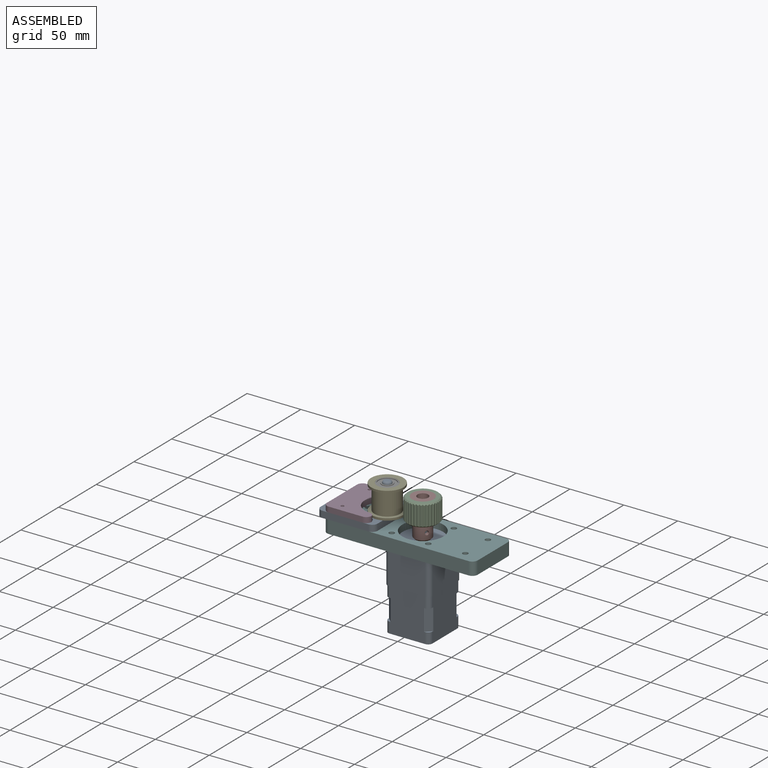
[diagram: assembled view]
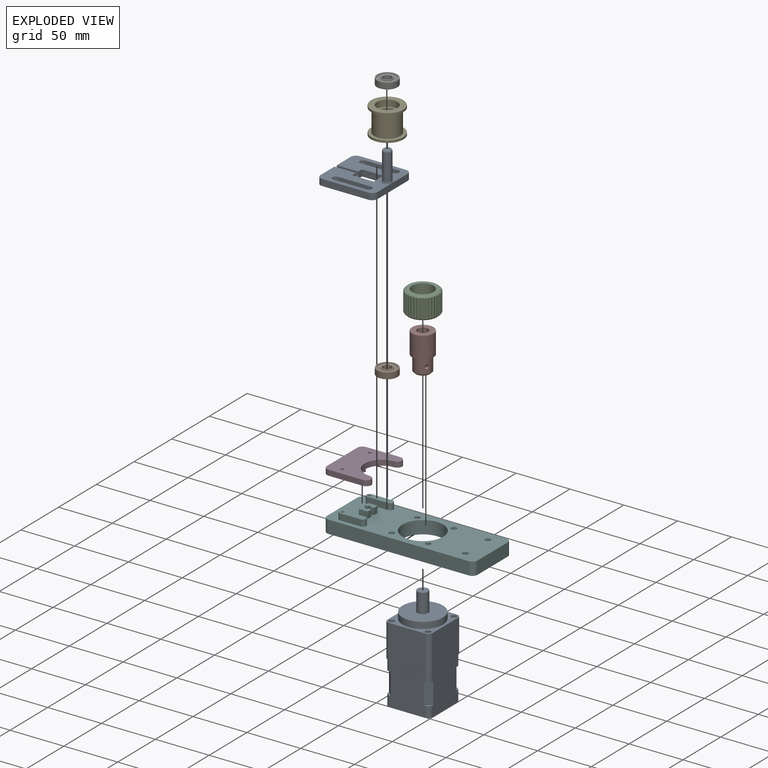
[diagram: exploded view]
GUIDED TOUR — MATED ASSEMBLY (Onshape document dc649e58a94492d9686c7cba, AutoMate assembly dc649e58a94492d9686c7cba_fb0085549e89a149cfe6f645_e41df372a86c38e44a13ec25_default)

This assembly has 9 components, labeled P0..P8 below (a component is one placed occurrence of a part; the same part can appear more than once), held together by 20 mates. A mate is a constraint between two components; its type names the relative motion it leaves free:
  CYLINDRICAL — leaves both rotation about and translation along the listed axis free,
  PARALLEL — keeps the two listed directions parallel,
  PLANAR — leaves sliding in the plane through the listed point (normal = the listed direction) and rotation about that normal free.
Axis/direction vectors are unit vectors and 'through' points are millimeter coordinates, both in the assembly's world frame.

MATES
  1. CYLINDRICAL "Cylindrical 2": P8 <-> P5, axis (0.000, 0.000, -1.000) through (-33.94, 81.81, -2.03) mm
  2. PLANAR "Planar 7": P7 <-> P2, direction (0.000, 0.000, 1.000) through (-16.97, 64.83, 38.97) mm
  3. PLANAR "Planar 5": P4 <-> P6, direction (0.000, 0.000, 1.000) through (-49.98, 64.83, 35.47) mm
  4. CYLINDRICAL "Cylindrical 3": P6 <-> P4, axis (0.000, 0.000, -1.000) through (-49.98, 64.83, 38.47) mm
  5. PLANAR "Planar 6": P0 <-> P1, direction (0.000, 0.000, 1.000) through (-49.98, 64.83, 16.47) mm
  6. PARALLEL "Parallel 1": P0 <-> P5, direction (1.000, 0.000, 0.000) through (-77.98, 64.83, 12.80) mm
  7. CYLINDRICAL "Cylindrical 7": P7 <-> P2, axis (0.000, 0.000, 1.000) through (-16.97, 64.83, 28.97) mm
  8. CYLINDRICAL "Cylindrical 4": P1 <-> P4, axis (0.000, 0.000, 1.000) through (-49.98, 64.83, 16.77) mm
  9. CYLINDRICAL "Cylindrical 5": P1 <-> P0, axis (0.000, 0.000, -1.000) through (-49.98, 64.83, 16.77) mm
  10. PLANAR "Planar 1": P5 <-> P8, direction (0.000, 0.000, -1.000) through (-23.29, 64.83, -2.03) mm
  11. CYLINDRICAL "Cylindrical 9": P5 <-> P3, axis (0.000, 0.000, 1.000) through (-78.97, 82.83, 6.97) mm
  12. CYLINDRICAL "Cylindrical 1": P5 <-> P8, axis (0.000, 0.000, -1.000) through (-16.97, 64.83, 9.97) mm
  13. PARALLEL "Parallel 3": P8 <-> P7, direction (0.000, 0.000, 1.000) through (-16.97, 64.83, 3.97) mm
  14. PLANAR "Planar 3": P5 <-> P0, direction (0.000, 1.000, 0.000) through (-69.47, 85.83, 12.97) mm
  15. PLANAR "Planar 2": P5 <-> P0, direction (0.000, 0.000, 1.000) through (0.00, 47.86, 9.97) mm
  16. PLANAR "Planar 8": P3 <-> P0, direction (0.000, 0.000, -1.000) through (-75.38, 50.00, 15.97) mm
  17. PARALLEL "Parallel 2": P5 <-> P0, direction (1.000, 0.000, 0.000) through (-63.47, 60.83, 12.97) mm
  18. PLANAR "Planar 4": P4 <-> P1, direction (0.000, 0.000, -1.000) through (-49.98, 64.83, 22.47) mm
  19. CYLINDRICAL "Cylindrical 8": P5 <-> P3, axis (0.000, 0.000, 1.000) through (-78.97, 46.83, 15.97) mm
  20. CYLINDRICAL "Cylindrical 6": P8 <-> P7, axis (0.000, 0.000, 1.000) through (-16.97, 64.83, 3.97) mm

ASSEMBLY ORDER
  1. P5 — the base component [order heuristic]
  2. P3 [order verified]
  3. P0 — core [order heuristic]
  4. P1 — core [order heuristic]
  5. P7 — core [order heuristic]
  6. P2 — core [order heuristic]
  7. P4 — core [order heuristic]
  8. P6 — core [order heuristic]
  9. P8 — core [order heuristic]
Order-tag legend:
  [order verified] — this step's position reverses a verified removal order: the component was checked to insert without passing through the ones already placed.
  [order heuristic] — the first 8 components form the assembly's core: parts whose collision-free extraction could not be verified, listed in mate-graph order.

Of the 9 components, 4 carry the full construction recipe — the FeatureScript program that regenerates the part's solid from scratch; the rest are supplied as boundary geometry only.
Each toured component is shown spotlighted twice — in the assembled view, then in the exploded view, where a leader line traces a displaced component back to its assembled socket (saturated green if recipe-attached, orange if geometry-only; every other component desaturated gray) — followed by its recipe or geometry summary and the mates that hold it.
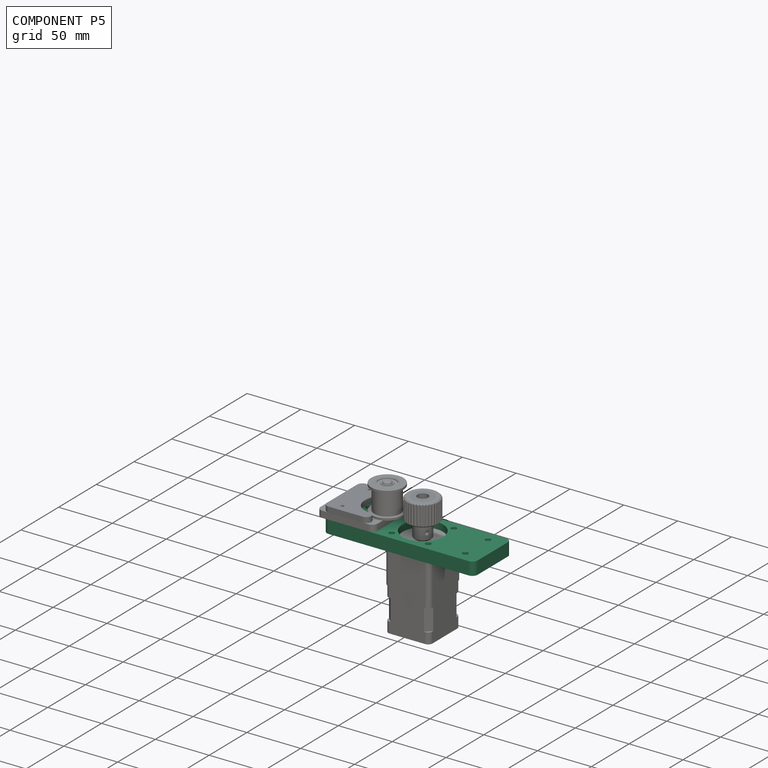
[diagram: component P5 — assembled]
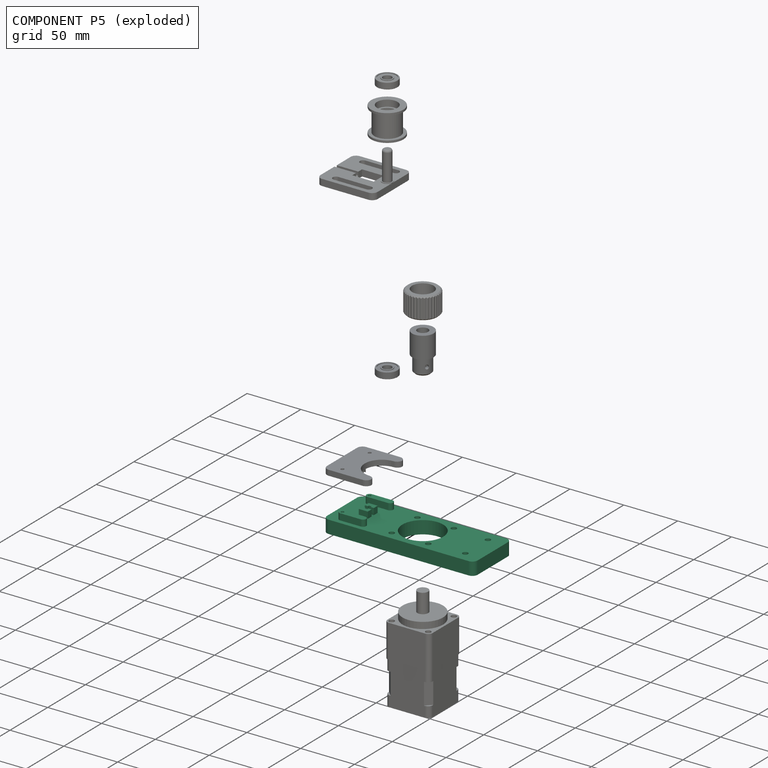
[diagram: component P5 — exploded]
COMPONENT P5 — recipe-attached (CADFS 00845139, mesh-verified: the recipe's output STEP matches this component's geometry to below the mesh-comparison resolution (tessellation chordal tolerance ~0.225 mm)).
Held by: CYLINDRICAL mate "Cylindrical 2" to P8; PARALLEL mate "Parallel 1" to P0; PLANAR mate "Planar 1" to P8; CYLINDRICAL mate "Cylindrical 9" to P3; CYLINDRICAL mate "Cylindrical 1" to P8; PLANAR mate "Planar 3" to P0; PLANAR mate "Planar 2" to P0; PARALLEL mate "Parallel 2" to P0; CYLINDRICAL mate "Cylindrical 8" to P3.
Construction recipe (FeatureScript — the CAD program that rebuilds this solid; sketch coordinates are in the units given by the * unit suffixes, e.g. mm):

FeatureScript 1511;
import(path : "onshape/std/geometry.fs", version : "1511.0");
import(path : "onshape/std/common.fs", version : "1511.0");
const mm = millimeter;
const VERTEX = EntityType.VERTEX;
const EDGE = EntityType.EDGE;
const FACE = EntityType.FACE;
const BODY = EntityType.BODY;
function v(x, y){return vector(x, y);}
function OD(order){return orderDisambiguation(order);}
function OSD(set){return originalSetDisambiguation(set);}
function TD(topology){return topologyDisambiguation(topology);}
function TDD(query){return trueDependencyDisambiguation(query);}
function sQuery(a, b, c) {return sketchEntityQuery(a, b, c);}

annotation { "Feature Type Name" : "Feature", "Feature Type Description" : "" }
export const myFeature = defineFeature(function(context is Context, id is Id, definition is map)
    precondition{}
    {
        {
            var Q0;
            Q0=qCreatedBy(makeId("Top.planeOp"),FACE);
            var sketch = newSketch(context, id + "F0", { "sketchPlane" : qUnion([Q0])});
            skLineSegment(sketch, "E0.bottom", {"start": v(25, 25) * mm, "end": v(-25, 25) * mm});
            skLineSegment(sketch, "E0.top", {"start": v(25, -25) * mm, "end": v(-25, -25) * mm});
            skLineSegment(sketch, "E0.left", {"start": v(25, 25) * mm, "end": v(25, -25) * mm});
            skLineSegment(sketch, "E0.right", {"start": v(-25, 25) * mm, "end": v(-25, -25) * mm});
            skPoint(sketch, "E0.middle", {"position": v(0, 0) * mm});
            skCircle(sketch, "E1", {"center": v(0, 0) * mm, "radius": 24 * mm, "construction": true});
            skLineSegment(sketch, "E2.bottom", {"start": v(21, -21) * mm, "end": v(-21, -21) * mm, "construction": true});
            skLineSegment(sketch, "E2.top", {"start": v(21, 21) * mm, "end": v(-21, 21) * mm, "construction": true});
            skLineSegment(sketch, "E2.left", {"start": v(21, -21) * mm, "end": v(21, 21) * mm, "construction": true});
            skLineSegment(sketch, "E2.right", {"start": v(-21, -21) * mm, "end": v(-21, 21) * mm, "construction": true});
            skLineSegment(sketch, "E3", {"start": v(-21, 21) * mm, "end": v(25, -25) * mm, "construction": true});
            skLineSegment(sketch, "E4", {"start": v(21, 21) * mm, "end": v(-25, -25) * mm, "construction": true});
            skCircle(sketch, "E5", {"center": v(-16.97, 16.97) * mm, "radius": 2.5 * mm});
            skCircle(sketch, "E6", {"center": v(16.97, 16.97) * mm, "radius": 2.5 * mm});
            skCircle(sketch, "E7", {"center": v(16.97, -16.97) * mm, "radius": 2.5 * mm});
            skCircle(sketch, "E8", {"center": v(-16.97, -16.97) * mm, "radius": 2.5 * mm});
            skCircle(sketch, "E9", {"center": v(0, 0) * mm, "radius": 19 * mm});
            skCircle(sketch, "E10", {"center": v(0, 0) * mm, "radius": 15 * mm, "construction": true});
            skLineSegment(sketch, "E11.bottom", {"start": v(25, -25) * mm, "end": v(65, -25) * mm});
            skLineSegment(sketch, "E11.top", {"start": v(25, 25) * mm, "end": v(65, 25) * mm});
            skLineSegment(sketch, "E11.left", {"start": v(25, -25) * mm, "end": v(25, 25) * mm});
            skLineSegment(sketch, "E11.right", {"start": v(65, -25) * mm, "end": v(65, 25) * mm});
            skLineSegment(sketch, "E12", {"start": v(50, 25) * mm, "end": v(50, -25) * mm, "construction": true});
            skLineSegment(sketch, "E13", {"start": v(25, -15) * mm, "end": v(65, -15) * mm, "construction": true});
            skLineSegment(sketch, "E14", {"start": v(25, 15) * mm, "end": v(65, 15) * mm, "construction": true});
            skCircle(sketch, "E15", {"center": v(50, 15) * mm, "radius": 2.5 * mm});
            skCircle(sketch, "E16", {"center": v(50, -15) * mm, "radius": 2.5 * mm});
            skLineSegment(sketch, "E17.bottom", {"start": v(-25, -25) * mm, "end": v(-75, -25) * mm});
            skLineSegment(sketch, "E17.top", {"start": v(-25, 25) * mm, "end": v(-75, 25) * mm});
            skLineSegment(sketch, "E17.left", {"start": v(-25, -25) * mm, "end": v(-25, 25) * mm});
            skLineSegment(sketch, "E17.right", {"start": v(-75, -25) * mm, "end": v(-75, 25) * mm});
            skSolve(sketch);
        }
        {
            var Q0;
            Q0=qSketchRegion(id+"F0",true);
            extrude(context, id + "F1", {"entities" : qUnion([Q0]), "depth" : 12 * mm, "offsetDistance" : 25 * mm});
        }
        {
            var Q0;
            Q0=makeQuery(id+"F1.opExtrude","SWEPT_EDGE",EDGE,{"disambiguationData":[OSD([sQuery(id+"F0.wireOp",EDGE,"E11.bottom"),sQuery(id+"F0.wireOp",EDGE,"E11.right")])]});
            var Q1;
            Q1=makeQuery(id+"F1.opExtrude","SWEPT_EDGE",EDGE,{"disambiguationData":[OSD([sQuery(id+"F0.wireOp",EDGE,"E0.top"),sQuery(id+"F0.wireOp",EDGE,"E0.right")])]});
            var Q2;
            Q2=makeQuery(id+"F1.opExtrude","SWEPT_EDGE",EDGE,{"disambiguationData":[OSD([sQuery(id+"F0.wireOp",EDGE,"E0.bottom"),sQuery(id+"F0.wireOp",EDGE,"E0.right")])]});
            var Q3;
            Q3=makeQuery(id+"F1.opExtrude","SWEPT_EDGE",EDGE,{"disambiguationData":[OSD([sQuery(id+"F0.wireOp",EDGE,"E11.top"),sQuery(id+"F0.wireOp",EDGE,"E11.right")])]});
            var Q4;
            Q4=makeQuery(id+"F1.opExtrude","SWEPT_EDGE",EDGE,{"disambiguationData":[OSD([sQuery(id+"F0.wireOp",EDGE,"E17.bottom"),sQuery(id+"F0.wireOp",EDGE,"E17.right")])]});
            var Q5;
            Q5=makeQuery(id+"F1.opExtrude","SWEPT_EDGE",EDGE,{"disambiguationData":[OSD([sQuery(id+"F0.wireOp",EDGE,"E17.top"),sQuery(id+"F0.wireOp",EDGE,"E17.right")])]});
            fillet(context, id + "F2", {"entities" : qUnion([Q0, Q1, Q2, Q3, Q4, Q5]), "radius" : 5 * mm, "tangentPropagation" : true, "allowEdgeOverflow" : false});
        }
        {
            var Q0;
            Q0=makeQuery(id+"F1.opExtrude","CAP_FACE",FACE,{"disambiguationData":[OSD([sQuery(id+"F0.wireOp",EDGE,"E0.bottom"),sQuery(id+"F0.wireOp",EDGE,"E0.top"),sQuery(id+"F0.wireOp",EDGE,"E5"),sQuery(id+"F0.wireOp",EDGE,"E6"),sQuery(id+"F0.wireOp",EDGE,"E7"),sQuery(id+"F0.wireOp",EDGE,"E8"),sQuery(id+"F0.wireOp",EDGE,"E9"),sQuery(id+"F0.wireOp",EDGE,"E11.bottom"),sQuery(id+"F0.wireOp",EDGE,"E11.top"),sQuery(id+"F0.wireOp",EDGE,"E11.right"),sQuery(id+"F0.wireOp",EDGE,"E15"),sQuery(id+"F0.wireOp",EDGE,"E16"),sQuery(id+"F0.wireOp",EDGE,"E17.bottom"),sQuery(id+"F0.wireOp",EDGE,"E17.top"),sQuery(id+"F0.wireOp",EDGE,"E17.right")])],"isStart":false});
            var sketch = newSketch(context, id + "F3", { "sketchPlane" : qUnion([Q0])});
            skLineSegment(sketch, "E18.bottom", {"start": v(-55, 21) * mm, "end": v(-40, 21) * mm});
            skLineSegment(sketch, "E18.top", {"start": v(-55, 15) * mm, "end": v(-40, 15) * mm});
            skLineSegment(sketch, "E18.left", {"start": v(-55, 21) * mm, "end": v(-55, 15) * mm});
            skLineSegment(sketch, "E18.right", {"start": v(-40, 21) * mm, "end": v(-40, 15) * mm});
            skLineSegment(sketch, "E19.bottom", {"start": v(-55, -15) * mm, "end": v(-40, -15) * mm});
            skLineSegment(sketch, "E19.top", {"start": v(-55, -21) * mm, "end": v(-40, -21) * mm});
            skLineSegment(sketch, "E19.left", {"start": v(-55, -15) * mm, "end": v(-55, -21) * mm});
            skLineSegment(sketch, "E19.right", {"start": v(-40, -15) * mm, "end": v(-40, -21) * mm});
            skLineSegment(sketch, "E20.bottom", {"start": v(-55, 6.5) * mm, "end": v(-46.5, 6.5) * mm});
            skLineSegment(sketch, "E20.left", {"start": v(-55, 6.5) * mm, "end": v(-55, 1.5) * mm});
            skLineSegment(sketch, "E21.top", {"start": v(-49.5, 1.5) * mm, "end": v(-46.5, 1.5) * mm});
            skLineSegment(sketch, "E22.top", {"start": v(-46.5, -1.5) * mm, "end": v(-49.5, -1.5) * mm});
            skLineSegment(sketch, "E22.left", {"start": v(-46.5, -6.5) * mm, "end": v(-46.5, -1.5) * mm});
            skLineSegment(sketch, "E23.bottom", {"start": v(-46.5, -6.5) * mm, "end": v(-55, -6.5) * mm});
            skLineSegment(sketch, "E23.top", {"start": v(-52, -1.5) * mm, "end": v(-55, -1.5) * mm});
            skLineSegment(sketch, "E23.right", {"start": v(-55, -6.5) * mm, "end": v(-55, -1.5) * mm});
            skLineSegment(sketch, "E24", {"start": v(-46.5, 1.5) * mm, "end": v(-46.5, 6.5) * mm});
            skLineSegment(sketch, "E25", {"start": v(-55, 1.5) * mm, "end": v(-52, 1.5) * mm});
            skLineSegment(sketch, "E26", {"start": v(-52, 1.5) * mm, "end": v(-52, 2.85) * mm});
            skLineSegment(sketch, "E27", {"start": v(-49.5, 1.5) * mm, "end": v(-49.5, 2.85) * mm});
            skLineSegment(sketch, "E28", {"start": v(-52, -1.5) * mm, "end": v(-52, -2.85) * mm});
            skLineSegment(sketch, "E29", {"start": v(-49.5, -1.5) * mm, "end": v(-49.5, -2.85) * mm});
            skLineSegment(sketch, "E30", {"start": v(-49.5, -2.85) * mm, "end": v(-52, -2.85) * mm});
            skLineSegment(sketch, "E31", {"start": v(-49.5, 2.85) * mm, "end": v(-52, 2.85) * mm});
            skLineSegment(sketch, "E32.bottom", {"start": v(-55, 21) * mm, "end": v(-65, 21) * mm});
            skLineSegment(sketch, "E32.top", {"start": v(-55, 15) * mm, "end": v(-65, 15) * mm});
            skLineSegment(sketch, "E32.right", {"start": v(-65, 21) * mm, "end": v(-65, 15) * mm});
            skLineSegment(sketch, "E33.bottom", {"start": v(-55, -15) * mm, "end": v(-65, -15) * mm});
            skLineSegment(sketch, "E33.top", {"start": v(-55, -21) * mm, "end": v(-65, -21) * mm});
            skLineSegment(sketch, "E33.right", {"start": v(-65, -15) * mm, "end": v(-65, -21) * mm});
            skSolve(sketch);
        }
        {
            var Q0;
            Q0 = qSketchRegion(id + "F3", true);
            extrude(context, id + "F4", {"entities" : qUnion([Q0]), "operationType" : NewBodyOperationType.ADD, "depth" : 6 * mm, "offsetDistance" : 25 * mm});
        }
        {
            var Q0;
            Q0=makeQuery(id+"F4.opExtrude","SWEPT_EDGE",EDGE,{"disambiguationData":[OSD([sQuery(id+"F3.wireOp",EDGE,"E32.bottom"),sQuery(id+"F3.wireOp",EDGE,"E32.right")])]});
            var Q1;
            Q1=makeQuery(id+"F4.opExtrude","SWEPT_EDGE",EDGE,{"disambiguationData":[OSD([sQuery(id+"F3.wireOp",EDGE,"E32.top"),sQuery(id+"F3.wireOp",EDGE,"E32.right")])]});
            var Q2;
            Q2=makeQuery(id+"F4.opExtrude","SWEPT_EDGE",EDGE,{"disambiguationData":[OSD([sQuery(id+"F3.wireOp",EDGE,"E18.top"),sQuery(id+"F3.wireOp",EDGE,"E18.right")])]});
            var Q3;
            Q3=makeQuery(id+"F4.opExtrude","SWEPT_EDGE",EDGE,{"disambiguationData":[OSD([sQuery(id+"F3.wireOp",EDGE,"E33.bottom"),sQuery(id+"F3.wireOp",EDGE,"E33.right")])]});
            var Q4;
            Q4=makeQuery(id+"F4.opExtrude","SWEPT_EDGE",EDGE,{"disambiguationData":[OSD([sQuery(id+"F3.wireOp",EDGE,"E33.top"),sQuery(id+"F3.wireOp",EDGE,"E33.right")])]});
            var Q5;
            Q5=makeQuery(id+"F4.opExtrude","SWEPT_EDGE",EDGE,{"disambiguationData":[OSD([sQuery(id+"F3.wireOp",EDGE,"E19.top"),sQuery(id+"F3.wireOp",EDGE,"E19.right")])]});
            var Q6;
            Q6=makeQuery(id+"F4.opExtrude","SWEPT_EDGE",EDGE,{"disambiguationData":[OSD([sQuery(id+"F3.wireOp",EDGE,"E19.bottom"),sQuery(id+"F3.wireOp",EDGE,"E19.right")])]});
            var Q7;
            Q7=makeQuery(id+"F4.opExtrude","SWEPT_EDGE",EDGE,{"disambiguationData":[OSD([sQuery(id+"F3.wireOp",EDGE,"E18.bottom"),sQuery(id+"F3.wireOp",EDGE,"E18.right")])]});
            fillet(context, id + "F5", {"entities" : qUnion([Q0, Q1, Q2, Q3, Q4, Q5, Q6, Q7]), "radius" : 3 * mm, "tangentPropagation" : true, "allowEdgeOverflow" : false});
        }
        {
            var Q0;
            Q0=makeQuery(id+"F4.opExtrude","CAP_FACE",FACE,{"disambiguationData":[OSD([sQuery(id+"F3.wireOp",EDGE,"E18.bottom"),sQuery(id+"F3.wireOp",EDGE,"E18.top"),sQuery(id+"F3.wireOp",EDGE,"E18.right"),sQuery(id+"F3.wireOp",EDGE,"E32.bottom"),sQuery(id+"F3.wireOp",EDGE,"E32.top"),sQuery(id+"F3.wireOp",EDGE,"E32.right")])],"isStart":false});
            var sketch = newSketch(context, id + "F6", { "sketchPlane" : qUnion([Q0])});
            skCircle(sketch, "E34", {"center": v(-62, 18) * mm, "radius": 1.4 * mm});
            skCircle(sketch, "E35", {"center": v(-62, -18) * mm, "radius": 1.4 * mm});
            skSolve(sketch);
        }
        {
            var Q0;
            Q0 = qSketchRegion(id + "F6", true);
            extrude(context, id + "F7", {"entities" : qUnion([Q0]), "operationType" : NewBodyOperationType.REMOVE, "endBound" : BoundingType.UP_TO_NEXT, "oppositeDirection" : true, "depth" : 25 * mm, "offsetDistance" : 25 * mm});
        }
    });
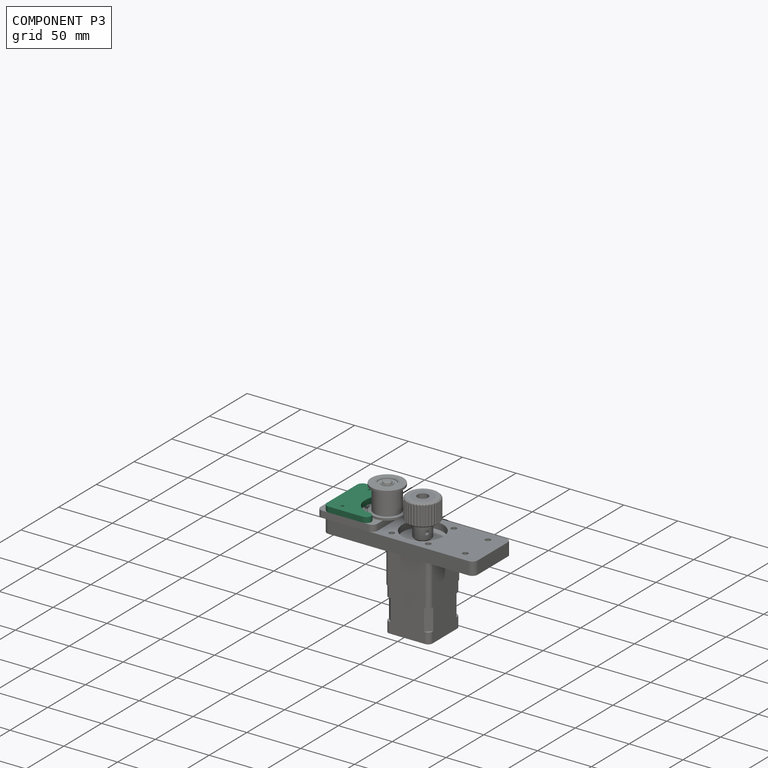
[diagram: component P3 — assembled]
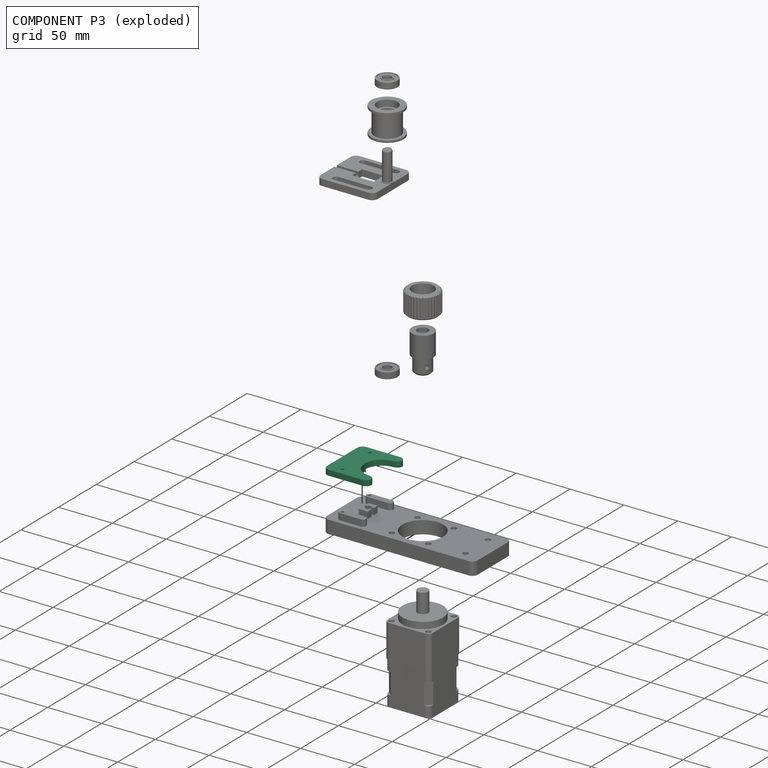
[diagram: component P3 — exploded]
COMPONENT P3 — recipe-attached (CADFS 00845114, mesh-verified: the recipe's output STEP matches this component's geometry to below the mesh-comparison resolution (tessellation chordal tolerance ~0.0982 mm)).
Held by: CYLINDRICAL mate "Cylindrical 9" to P5; PLANAR mate "Planar 8" to P0; CYLINDRICAL mate "Cylindrical 8" to P5.
Construction recipe (FeatureScript — the CAD program that rebuilds this solid; sketch coordinates are in the units given by the * unit suffixes, e.g. mm):

FeatureScript 1511;
import(path : "onshape/std/geometry.fs", version : "1511.0");
import(path : "onshape/std/common.fs", version : "1511.0");
const mm = millimeter;
const VERTEX = EntityType.VERTEX;
const EDGE = EntityType.EDGE;
const FACE = EntityType.FACE;
const BODY = EntityType.BODY;
function v(x, y){return vector(x, y);}
function OD(order){return orderDisambiguation(order);}
function OSD(set){return originalSetDisambiguation(set);}
function TD(topology){return topologyDisambiguation(topology);}
function TDD(query){return trueDependencyDisambiguation(query);}
function sQuery(a, b, c) {return sketchEntityQuery(a, b, c);}

annotation { "Feature Type Name" : "Feature", "Feature Type Description" : "" }
export const myFeature = defineFeature(function(context is Context, id is Id, definition is map)
    precondition{}
    {
        {
            var Q0;
            Q0=qCreatedBy(makeId("Top.planeOp"),FACE);
            var sketch = newSketch(context, id + "F0", { "sketchPlane" : qUnion([Q0])});
            skLineSegment(sketch, "E0.bottom", {"start": v(25, -10.5) * mm, "end": v(-25, -10.5) * mm});
            skLineSegment(sketch, "E0.top", {"start": v(25, 10.5) * mm, "end": v(-25, 10.5) * mm});
            skLineSegment(sketch, "E0.left", {"start": v(25, -10.5) * mm, "end": v(25, 10.5) * mm});
            skLineSegment(sketch, "E0.right", {"start": v(-25, -10.5) * mm, "end": v(-25, 10.5) * mm});
            skPoint(sketch, "E0.middle", {"position": v(0, 0) * mm});
            skCircle(sketch, "E1", {"center": v(-18, -2.5) * mm, "radius": 1.5 * mm});
            skCircle(sketch, "E2", {"center": v(18, -2.5) * mm, "radius": 1.5 * mm});
            skCircle(sketch, "E3", {"center": v(0, -26.5) * mm, "radius": 17 * mm, "construction": true});
            skCircle(sketch, "E4", {"center": v(0, -26.5) * mm, "radius": 16 * mm});
            skLineSegment(sketch, "E5.bottom", {"start": v(-25, -10.5) * mm, "end": v(25, -10.5) * mm});
            skLineSegment(sketch, "E5.top", {"start": v(-25, -40.5) * mm, "end": v(25, -40.5) * mm});
            skLineSegment(sketch, "E5.left", {"start": v(-25, -10.5) * mm, "end": v(-25, -40.5) * mm});
            skLineSegment(sketch, "E5.right", {"start": v(25, -10.5) * mm, "end": v(25, -40.5) * mm});
            skLineSegment(sketch, "E6", {"start": v(0, -26.5) * mm, "end": v(-16, -26.5) * mm});
            skLineSegment(sketch, "E7", {"start": v(0.62, -26.5) * mm, "end": v(16, -26.5) * mm});
            skLineSegment(sketch, "E8", {"start": v(-16, -26.5) * mm, "end": v(-16, -40.5) * mm});
            skLineSegment(sketch, "E9", {"start": v(16, -26.5) * mm, "end": v(16, -40.5) * mm});
            skLineSegment(sketch, "E10", {"start": v(-25, -31) * mm, "end": v(25, -31) * mm});
            skSolve(sketch);
        }
        {
            var Q0;
            Q0=makeQuery(id+"F0.imprint","IMPRINT",FACE,{"disambiguationData":[TD([[makeQuery(id+"F0.imprint","IMPRINT",EDGE,{"derivedFrom":sQuery(id+"F0.wireOp",EDGE,"E0.top")}),1.0]])]});
            var Q1;
            {var subQ5=sQuery(id+"F0.wireOp",EDGE,"E4");var subQ7=sQuery(id+"F0.wireOp",EDGE,"E9");var subQ8=makeQuery(id+"F0.imprint","INTERSECT",VERTEX,{"derivedFrom":[subQ5,subQ7]});Q1=makeQuery(id+"F0.imprint","IMPRINT",FACE,{"disambiguationData":[TD([[makeQuery(id+"F0.imprint","IMPRINT",EDGE,{"disambiguationData":[TD([[subQ8,-1.0]])],"derivedFrom":subQ5}),-1.0]])]});}
            var Q2;
            {var subQ0=sQuery(id+"F0.wireOp",EDGE,"E8");var subQ1=sQuery(id+"F0.wireOp",EDGE,"E4");var subQ2=makeQuery(id+"F0.imprint","INTERSECT",VERTEX,{"derivedFrom":[subQ1,subQ0]});Q2=makeQuery(id+"F0.imprint","IMPRINT",FACE,{"disambiguationData":[TD([[makeQuery(id+"F0.imprint","IMPRINT",EDGE,{"disambiguationData":[TD([[subQ2,1.0]])],"derivedFrom":subQ1}),-1.0]])]});}
            extrude(context, id + "F1", {"entities" : qUnion([Q0, Q1, Q2]), "depth" : 5 * mm, "offsetDistance" : 25 * mm});
        }
        {
            var Q0;
            Q0=makeQuery(id+"F1.opExtrude","SWEPT_EDGE",EDGE,{"disambiguationData":[OSD([sQuery(id+"F0.wireOp",EDGE,"E5.right"),sQuery(id+"F0.wireOp",EDGE,"E10")])]});
            var Q1;
            Q1=makeQuery(id+"F1.opExtrude","SWEPT_EDGE",EDGE,{"disambiguationData":[OSD([sQuery(id+"F0.wireOp",EDGE,"E5.left"),sQuery(id+"F0.wireOp",EDGE,"E10")])]});
            var Q2;
            Q2=makeQuery(id+"F1.opExtrude","SWEPT_EDGE",EDGE,{"disambiguationData":[OSD([sQuery(id+"F0.wireOp",EDGE,"E0.top"),sQuery(id+"F0.wireOp",EDGE,"E0.right")])]});
            var Q3;
            Q3=makeQuery(id+"F1.opExtrude","SWEPT_EDGE",EDGE,{"disambiguationData":[OSD([sQuery(id+"F0.wireOp",EDGE,"E0.top"),sQuery(id+"F0.wireOp",EDGE,"E0.left")])]});
            fillet(context, id + "F2", {"entities" : qUnion([Q0, Q1, Q2, Q3]), "radius" : 5 * mm, "tangentPropagation" : true, "allowEdgeOverflow" : false});
        }
        {
            var Q0;
            Q0=makeQuery(id+"F1.opExtrude","CAP_FACE",FACE,{"disambiguationData":[OSD([sQuery(id+"F0.wireOp",EDGE,"E0.top"),sQuery(id+"F0.wireOp",EDGE,"E0.left"),sQuery(id+"F0.wireOp",EDGE,"E0.right"),sQuery(id+"F0.wireOp",EDGE,"E1"),sQuery(id+"F0.wireOp",EDGE,"E2"),sQuery(id+"F0.wireOp",EDGE,"E4"),sQuery(id+"F0.wireOp",EDGE,"E5.left"),sQuery(id+"F0.wireOp",EDGE,"E5.right"),sQuery(id+"F0.wireOp",EDGE,"E8"),sQuery(id+"F0.wireOp",EDGE,"E9"),sQuery(id+"F0.wireOp",EDGE,"E10")])],"isStart":false});
            var sketch = newSketch(context, id + "F3", { "sketchPlane" : qUnion([Q0])});
            skLineSegment(sketch, "E11.bottom", {"start": v(1.5, 10.5) * mm, "end": v(-1.5, 10.5) * mm});
            skLineSegment(sketch, "E11.top", {"start": v(1.5, -10.5) * mm, "end": v(-1.5, -10.5) * mm});
            skLineSegment(sketch, "E11.left", {"start": v(1.5, 10.5) * mm, "end": v(1.5, -10.5) * mm});
            skLineSegment(sketch, "E11.right", {"start": v(-1.5, 10.5) * mm, "end": v(-1.5, -10.5) * mm});
            skPoint(sketch, "E11.middle", {"position": v(0, 0) * mm});
            skSolve(sketch);
        }
        {
            var Q0;
            Q0 = qSketchRegion(id + "F3", true);
            extrude(context, id + "F4", {"entities" : qUnion([Q0]), "operationType" : NewBodyOperationType.ADD, "depth" : 3 * mm, "offsetDistance" : 25 * mm});
        }
        {
            var Q0;
            Q0=makeQuery(id+"F4.boolean.opBoolean","MERGE",FACE,{"derivedFrom":[makeQuery(id+"F1.opExtrude","SWEPT_FACE",FACE,{"disambiguationData":[OSD([sQuery(id+"F0.wireOp",EDGE,"E0.top")])]}),makeQuery(id+"F4.opExtrude","SWEPT_FACE",FACE,{"disambiguationData":[OSD([sQuery(id+"F3.wireOp",EDGE,"E11.bottom")])]})]});
            var sketch = newSketch(context, id + "F5", { "sketchPlane" : qUnion([Q0])});
            skCircle(sketch, "E12", {"center": v(0, 8) * mm, "radius": 1.5 * mm});
            skSolve(sketch);
        }
        {
            var Q0;
            Q0 = qSketchRegion(id + "F5", true);
            extrude(context, id + "F6", {"entities" : qUnion([Q0]), "operationType" : NewBodyOperationType.REMOVE, "endBound" : BoundingType.UP_TO_NEXT, "oppositeDirection" : true, "depth" : 25 * mm, "offsetDistance" : 25 * mm});
        }
        {
            var Q0;
            Q0=makeQuery(id+"F1.opExtrude","SWEPT_EDGE",EDGE,{"disambiguationData":[OSD([sQuery(id+"F0.wireOp",EDGE,"E9"),sQuery(id+"F0.wireOp",EDGE,"E10")])]});
            var Q1;
            Q1=makeQuery(id+"F1.opExtrude","SWEPT_EDGE",EDGE,{"disambiguationData":[OSD([sQuery(id+"F0.wireOp",EDGE,"E8"),sQuery(id+"F0.wireOp",EDGE,"E10")])]});
            fillet(context, id + "F7", {"entities" : qUnion([Q0, Q1]), "radius" : 5 * mm, "tangentPropagation" : true, "allowEdgeOverflow" : false});
        }
    });
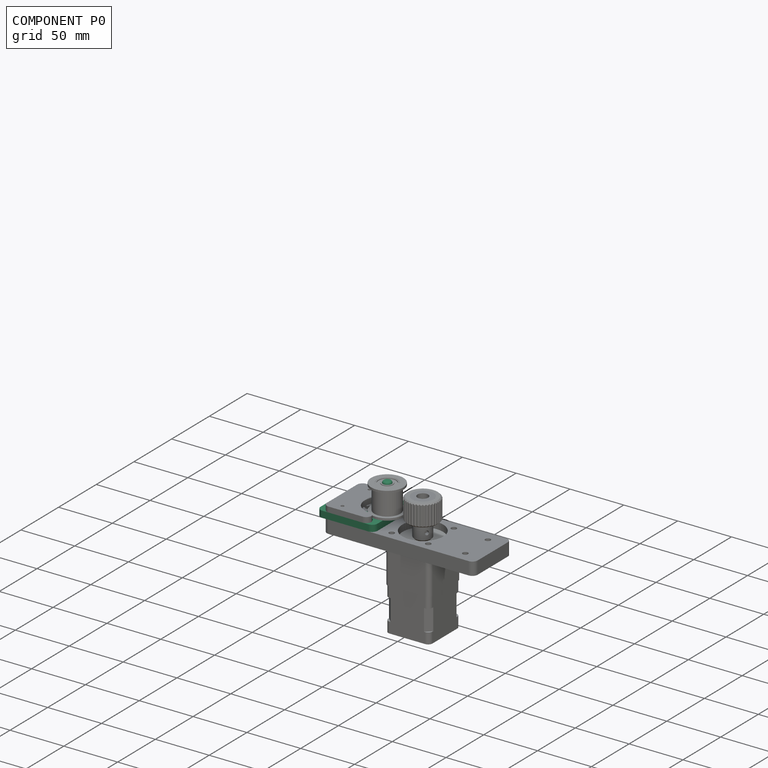
[diagram: component P0 — assembled]
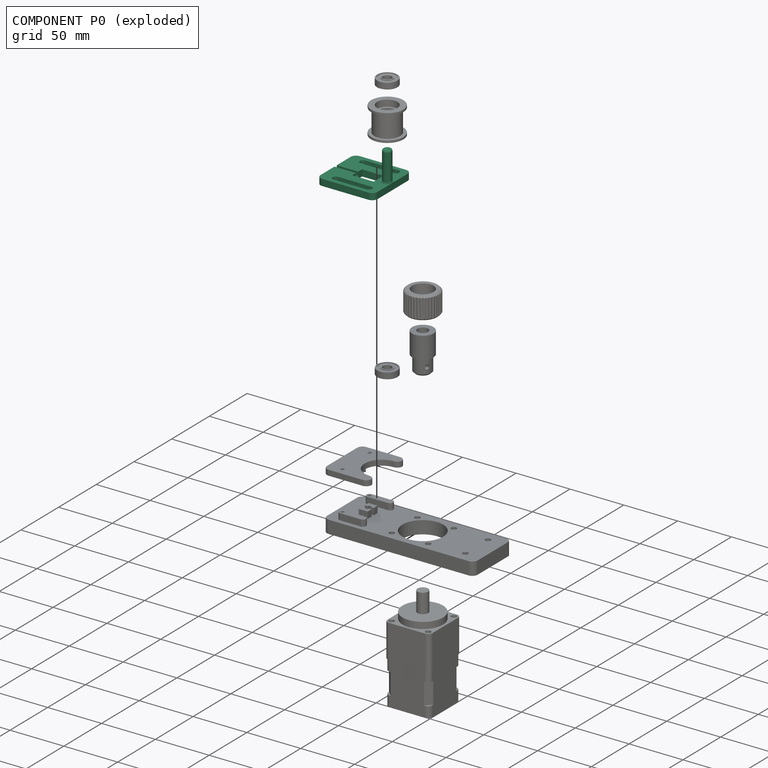
[diagram: component P0 — exploded]
COMPONENT P0 — recipe-attached (CADFS 00845140, mesh-verified: the recipe's output STEP matches this component's geometry to below the mesh-comparison resolution (tessellation chordal tolerance ~0.12 mm)).
Held by: PLANAR mate "Planar 6" to P1; PARALLEL mate "Parallel 1" to P5; CYLINDRICAL mate "Cylindrical 5" to P1; PLANAR mate "Planar 3" to P5; PLANAR mate "Planar 2" to P5; PLANAR mate "Planar 8" to P3; PARALLEL mate "Parallel 2" to P5.
Construction recipe (FeatureScript — the CAD program that rebuilds this solid; sketch coordinates are in the units given by the * unit suffixes, e.g. mm):

FeatureScript 1511;
import(path : "onshape/std/geometry.fs", version : "1511.0");
import(path : "onshape/std/common.fs", version : "1511.0");
const mm = millimeter;
const VERTEX = EntityType.VERTEX;
const EDGE = EntityType.EDGE;
const FACE = EntityType.FACE;
const BODY = EntityType.BODY;
function v(x, y){return vector(x, y);}
function OD(order){return orderDisambiguation(order);}
function OSD(set){return originalSetDisambiguation(set);}
function TD(topology){return topologyDisambiguation(topology);}
function TDD(query){return trueDependencyDisambiguation(query);}
function sQuery(a, b, c) {return sketchEntityQuery(a, b, c);}

annotation { "Feature Type Name" : "Feature", "Feature Type Description" : "" }
export const myFeature = defineFeature(function(context is Context, id is Id, definition is map)
    precondition{}
    {
        {
            var Q0;
            Q0=qCreatedBy(makeId("Top.planeOp"),FACE);
            var sketch = newSketch(context, id + "F0", { "sketchPlane" : qUnion([Q0])});
            skLineSegment(sketch, "E0.bottom", {"start": v(25, 25) * mm, "end": v(-25, 25) * mm, "construction": true});
            skLineSegment(sketch, "E0.top", {"start": v(25, -25) * mm, "end": v(-25, -25) * mm, "construction": true});
            skLineSegment(sketch, "E0.left", {"start": v(25, 25) * mm, "end": v(25, -25) * mm, "construction": true});
            skLineSegment(sketch, "E0.right", {"start": v(-25, 25) * mm, "end": v(-25, -25) * mm, "construction": true});
            skPoint(sketch, "E0.middle", {"position": v(0, 0) * mm});
            skCircle(sketch, "E1", {"center": v(0, 0) * mm, "radius": 19 * mm, "construction": true});
            skCircle(sketch, "E2", {"center": v(0, 0) * mm, "radius": 15 * mm, "construction": true});
            skCircle(sketch, "E3", {"center": v(0, 27) * mm, "radius": 12 * mm, "construction": true});
            skLineSegment(sketch, "E4", {"start": v(-25, 75) * mm, "end": v(25, 75) * mm});
            skLineSegment(sketch, "E5", {"start": v(25, 75) * mm, "end": v(25, 22) * mm});
            skLineSegment(sketch, "E6", {"start": v(25, 22) * mm, "end": v(-25, 22) * mm});
            skCircle(sketch, "E7", {"center": v(0, 27) * mm, "radius": 4 * mm});
            skCircle(sketch, "E8", {"center": v(0, 27) * mm, "radius": 5 * mm});
            skLineSegment(sketch, "E9", {"start": v(-25, 75) * mm, "end": v(-25, 22) * mm});
            skLineSegment(sketch, "E10.bottom", {"start": v(-25, 25) * mm, "end": v(25, 25) * mm, "construction": true});
            skLineSegment(sketch, "E10.top", {"start": v(-25, 75) * mm, "end": v(25, 75) * mm, "construction": true});
            skLineSegment(sketch, "E10.left", {"start": v(-25, 25) * mm, "end": v(-25, 75) * mm, "construction": true});
            skLineSegment(sketch, "E10.right", {"start": v(25, 25) * mm, "end": v(25, 75) * mm, "construction": true});
            skLineSegment(sketch, "E11.bottom", {"start": v(-6.5, 55) * mm, "end": v(6.5, 55) * mm, "construction": true});
            skLineSegment(sketch, "E11.top", {"start": v(-6.5, 46.5) * mm, "end": v(6.5, 46.5) * mm, "construction": true});
            skLineSegment(sketch, "E11.left", {"start": v(-6.5, 55) * mm, "end": v(-6.5, 46.5) * mm, "construction": true});
            skLineSegment(sketch, "E11.right", {"start": v(6.5, 55) * mm, "end": v(6.5, 46.5) * mm, "construction": true});
            skLineSegment(sketch, "E12", {"start": v(-15, 55) * mm, "end": v(-6.5, 55) * mm, "construction": true});
            skLineSegment(sketch, "E13.bottom", {"start": v(-21, 65) * mm, "end": v(-15, 65) * mm});
            skLineSegment(sketch, "E13.top", {"start": v(-21, 25) * mm, "end": v(-15, 25) * mm});
            skLineSegment(sketch, "E13.left", {"start": v(-21, 65) * mm, "end": v(-21, 25) * mm});
            skLineSegment(sketch, "E13.right", {"start": v(-15, 65) * mm, "end": v(-15, 25) * mm});
            skLineSegment(sketch, "E14.bottom", {"start": v(-6.5, 55) * mm, "end": v(6.5, 55) * mm});
            skLineSegment(sketch, "E14.top", {"start": v(-6.5, 35) * mm, "end": v(6.5, 35) * mm});
            skLineSegment(sketch, "E14.left", {"start": v(-6.5, 55) * mm, "end": v(-6.5, 35) * mm});
            skLineSegment(sketch, "E14.right", {"start": v(6.5, 55) * mm, "end": v(6.5, 35) * mm});
            skLineSegment(sketch, "E15.top", {"start": v(15, 25) * mm, "end": v(21, 25) * mm});
            skLineSegment(sketch, "E15.left", {"start": v(15, 65) * mm, "end": v(15, 25) * mm});
            skLineSegment(sketch, "E15.right", {"start": v(21, 65) * mm, "end": v(21, 25) * mm});
            skLineSegment(sketch, "E16", {"start": v(21, 65) * mm, "end": v(15, 65) * mm});
            skLineSegment(sketch, "E17", {"start": v(-15, 28.5) * mm, "end": v(-21, 28.5) * mm});
            skLineSegment(sketch, "E18", {"start": v(21, 28.5) * mm, "end": v(15, 28.5) * mm});
            skSolve(sketch);
        }
        {
            var Q0;
            Q0=qSketchRegion(id+"F0",true);
            var Q1;
            Q1=makeQuery(id+"F0.imprint","IMPRINT",FACE,{"disambiguationData":[TD([[makeQuery(id+"F0.imprint","IMPRINT",EDGE,{"derivedFrom":sQuery(id+"F0.wireOp",EDGE,"E7")}),1.0]])]});
            var Q2;
            Q2=makeQuery(id+"F0.imprint","IMPRINT",FACE,{"disambiguationData":[TD([[makeQuery(id+"F0.imprint","IMPRINT",EDGE,{"derivedFrom":sQuery(id+"F0.wireOp",EDGE,"E7")}),-1.0]])]});
            var Q3;
            {var subQ0=sQuery(id+"F0.wireOp",EDGE,"E15.top");Q3=makeQuery(id+"F0.imprint","IMPRINT",FACE,{"disambiguationData":[TD([[makeQuery(id+"F0.imprint","IMPRINT",EDGE,{"derivedFrom":subQ0}),1.0]])]});}
            var Q4;
            {var subQ0=sQuery(id+"F0.wireOp",EDGE,"E13.top");Q4=makeQuery(id+"F0.imprint","IMPRINT",FACE,{"disambiguationData":[TD([[makeQuery(id+"F0.imprint","IMPRINT",EDGE,{"derivedFrom":subQ0}),1.0]])]});}
            extrude(context, id + "F1", {"entities" : qUnion([Q0, Q1, Q2, Q3, Q4]), "oppositeDirection" : true, "depth" : 6 * mm, "offsetDistance" : 25 * mm});
        }
        {
            var Q0;
            Q0=makeQuery(id+"F0.imprint","IMPRINT",FACE,{"disambiguationData":[TD([[makeQuery(id+"F0.imprint","IMPRINT",EDGE,{"derivedFrom":sQuery(id+"F0.wireOp",EDGE,"E7")}),1.0]])]});
            var Q1;
            Q1=makeQuery(id+"F0.imprint","IMPRINT",FACE,{"disambiguationData":[TD([[makeQuery(id+"F0.imprint","IMPRINT",EDGE,{"derivedFrom":sQuery(id+"F0.wireOp",EDGE,"E7")}),-1.0]])]});
            extrude(context, id + "F2", {"entities" : qUnion([Q0, Q1]), "operationType" : NewBodyOperationType.ADD, "depth" : 0.5 * mm, "offsetDistance" : 25 * mm});
        }
        {
            var Q0;
            Q0=makeQuery(id+"F2.opExtrude","CAP_FACE",FACE,{"disambiguationData":[OSD([sQuery(id+"F0.wireOp",EDGE,"E8")])],"isStart":false});
            var sketch = newSketch(context, id + "F3", { "sketchPlane" : qUnion([Q0])});
            skCircle(sketch, "E19", {"center": v(0, 27) * mm, "radius": 4 * mm});
            skSolve(sketch);
        }
        {
            var Q0;
            Q0=qSketchRegion(id+"F3",true);
            extrude(context, id + "F4", {"entities" : qUnion([Q0]), "operationType" : NewBodyOperationType.ADD, "depth" : 27 * mm, "offsetDistance" : 25 * mm});
        }
        {
            var Q0;
            Q0=makeQuery(id+"F4.opExtrude","CAP_FACE",FACE,{"disambiguationData":[OSD([sQuery(id+"F3.wireOp",EDGE,"E19")])],"isStart":false});
            fillet(context, id + "F5", {"entities" : qUnion([Q0]), "radius" : 2 * mm, "tangentPropagation" : true, "allowEdgeOverflow" : false});
        }
        {
            var Q0;
            Q0=makeQuery(id+"F1.opExtrude","SWEPT_FACE",FACE,{"disambiguationData":[OSD([sQuery(id+"F0.wireOp",EDGE,"E4")])]});
            var sketch = newSketch(context, id + "F6", { "sketchPlane" : qUnion([Q0])});
            skLineSegment(sketch, "E20", {"start": v(-25, -3) * mm, "end": v(25, -3) * mm, "construction": true});
            skLineSegment(sketch, "E21", {"start": v(0, 0) * mm, "end": v(0, -6) * mm, "construction": true});
            skCircle(sketch, "E22", {"center": v(0, -3) * mm, "radius": 1.5 * mm});
            skLineSegment(sketch, "E23", {"start": v(-1.5, -3) * mm, "end": v(-1.5, 0) * mm});
            skLineSegment(sketch, "E24", {"start": v(1.5, -3) * mm, "end": v(1.5, 0) * mm});
            skLineSegment(sketch, "E25", {"start": v(1.5, 0) * mm, "end": v(-1.5, 0) * mm});
            skSolve(sketch);
        }
        {
            var Q0;
            Q0 = qSketchRegion(id + "F6", true);
            extrude(context, id + "F7", {"entities" : qUnion([Q0]), "operationType" : NewBodyOperationType.REMOVE, "endBound" : BoundingType.UP_TO_NEXT, "oppositeDirection" : true, "depth" : 25 * mm, "offsetDistance" : 25 * mm});
        }
        {
            var Q0;
            Q0=makeQuery(id+"F1.opExtrude","SWEPT_EDGE",EDGE,{"disambiguationData":[OSD([sQuery(id+"F0.wireOp",EDGE,"E4"),sQuery(id+"F0.wireOp",EDGE,"E5")])]});
            var Q1;
            Q1=makeQuery(id+"F1.opExtrude","SWEPT_EDGE",EDGE,{"disambiguationData":[OSD([sQuery(id+"F0.wireOp",EDGE,"E4"),sQuery(id+"F0.wireOp",EDGE,"E9")])]});
            var Q2;
            Q2=makeQuery(id+"F1.opExtrude","SWEPT_EDGE",EDGE,{"disambiguationData":[OSD([sQuery(id+"F0.wireOp",EDGE,"E6"),sQuery(id+"F0.wireOp",EDGE,"E9")])]});
            var Q3;
            Q3=makeQuery(id+"F1.opExtrude","SWEPT_EDGE",EDGE,{"disambiguationData":[OSD([sQuery(id+"F0.wireOp",EDGE,"E5"),sQuery(id+"F0.wireOp",EDGE,"E6")])]});
            fillet(context, id + "F8", {"entities" : qUnion([Q0, Q1, Q2, Q3]), "radius" : 5 * mm, "tangentPropagation" : true, "allowEdgeOverflow" : false});
        }
        {
            var Q0;
            Q0=makeQuery(id+"F1.opExtrude","SWEPT_EDGE",EDGE,{"disambiguationData":[OSD([sQuery(id+"F0.wireOp",EDGE,"E13.top"),sQuery(id+"F0.wireOp",EDGE,"E13.right")])]});
            var Q1;
            Q1=makeQuery(id+"F1.opExtrude","SWEPT_EDGE",EDGE,{"disambiguationData":[OSD([sQuery(id+"F0.wireOp",EDGE,"E13.top"),sQuery(id+"F0.wireOp",EDGE,"E13.left")])]});
            var Q2;
            Q2=makeQuery(id+"F1.opExtrude","SWEPT_EDGE",EDGE,{"disambiguationData":[OSD([sQuery(id+"F0.wireOp",EDGE,"E15.top"),sQuery(id+"F0.wireOp",EDGE,"E15.right")])]});
            var Q3;
            Q3=makeQuery(id+"F1.opExtrude","SWEPT_EDGE",EDGE,{"disambiguationData":[OSD([sQuery(id+"F0.wireOp",EDGE,"E15.top"),sQuery(id+"F0.wireOp",EDGE,"E15.left")])]});
            var Q4;
            Q4=makeQuery(id+"F1.opExtrude","SWEPT_EDGE",EDGE,{"disambiguationData":[OSD([sQuery(id+"F0.wireOp",EDGE,"E15.right"),sQuery(id+"F0.wireOp",EDGE,"E16")])]});
            var Q5;
            Q5=makeQuery(id+"F1.opExtrude","SWEPT_EDGE",EDGE,{"disambiguationData":[OSD([sQuery(id+"F0.wireOp",EDGE,"E13.bottom"),sQuery(id+"F0.wireOp",EDGE,"E13.right")])]});
            var Q6;
            Q6=makeQuery(id+"F1.opExtrude","SWEPT_EDGE",EDGE,{"disambiguationData":[OSD([sQuery(id+"F0.wireOp",EDGE,"E13.bottom"),sQuery(id+"F0.wireOp",EDGE,"E13.left")])]});
            var Q7;
            Q7=makeQuery(id+"F1.opExtrude","SWEPT_EDGE",EDGE,{"disambiguationData":[OSD([sQuery(id+"F0.wireOp",EDGE,"E15.left"),sQuery(id+"F0.wireOp",EDGE,"E16")])]});
            fillet(context, id + "F9", {"entities" : qUnion([Q0, Q1, Q2, Q3, Q4, Q5, Q6, Q7]), "radius" : 3 * mm, "tangentPropagation" : true, "allowEdgeOverflow" : false});
        }
    });
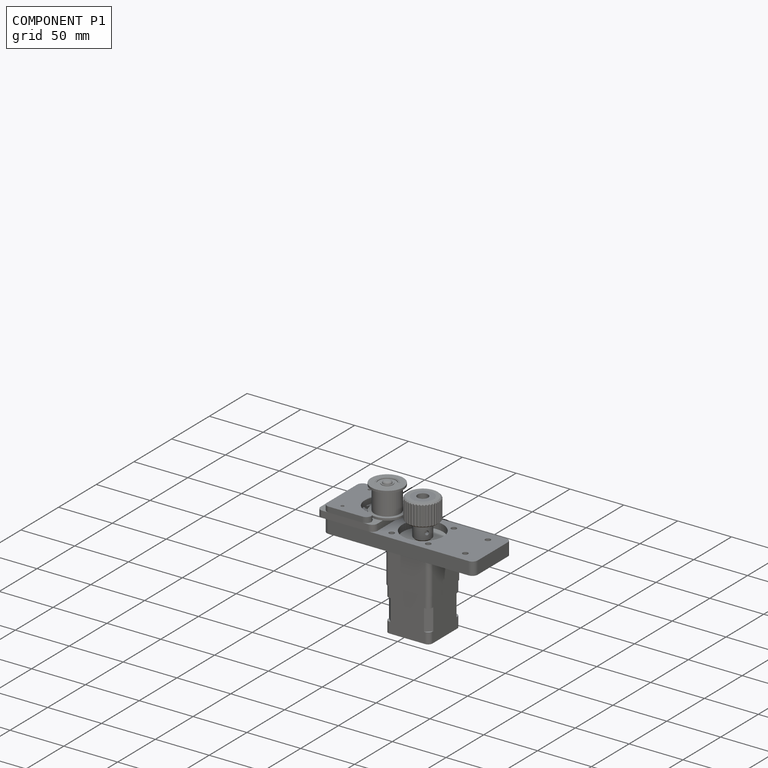
[diagram: component P1 — assembled]
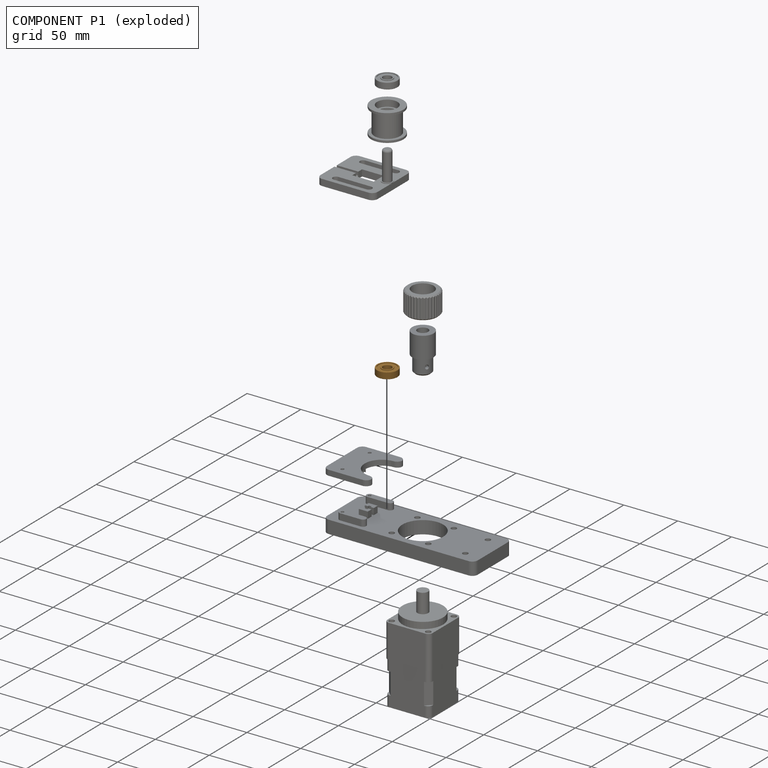
[diagram: component P1 — exploded]
COMPONENT P1 — geometry summary (no construction recipe available for this part):
  bounding box: 20.6 x 20.6 x 6.0 mm
  B-rep topology: 1 solid, 16 faces, 52 edges
  volume: 1232 mm^3 (49% of its bounding box)
  symmetry: revolution-symmetric about the x axis through its bounding-box center; 2-fold rotationally symmetric about the y axis; 2-fold rotationally symmetric about the z axis; mirror-symmetric across its x mid-plane, y mid-plane, z mid-plane
Held by: PLANAR mate "Planar 6" to P0; CYLINDRICAL mate "Cylindrical 4" to P4; CYLINDRICAL mate "Cylindrical 5" to P0; PLANAR mate "Planar 4" to P4.
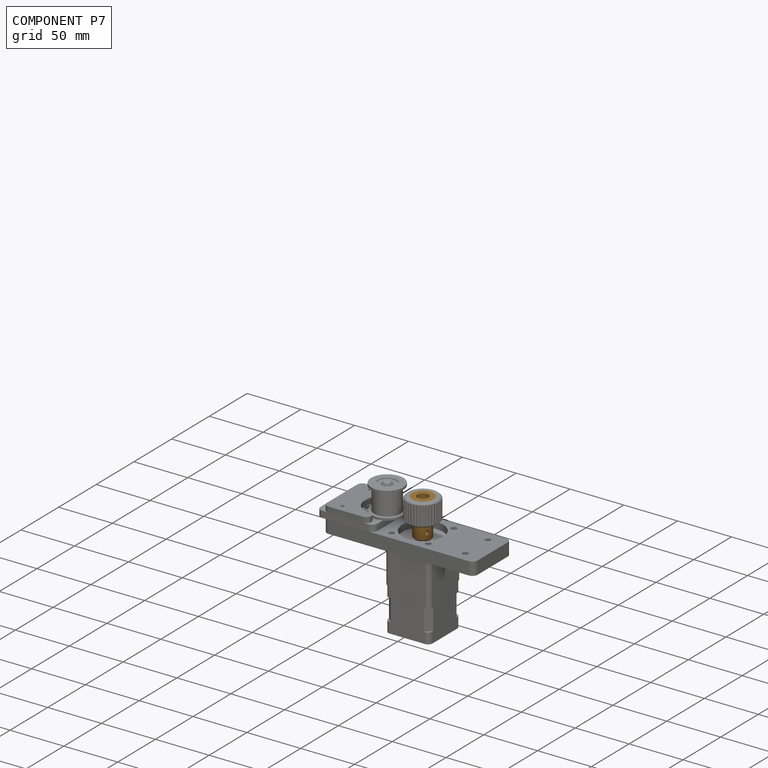
[diagram: component P7 — assembled]
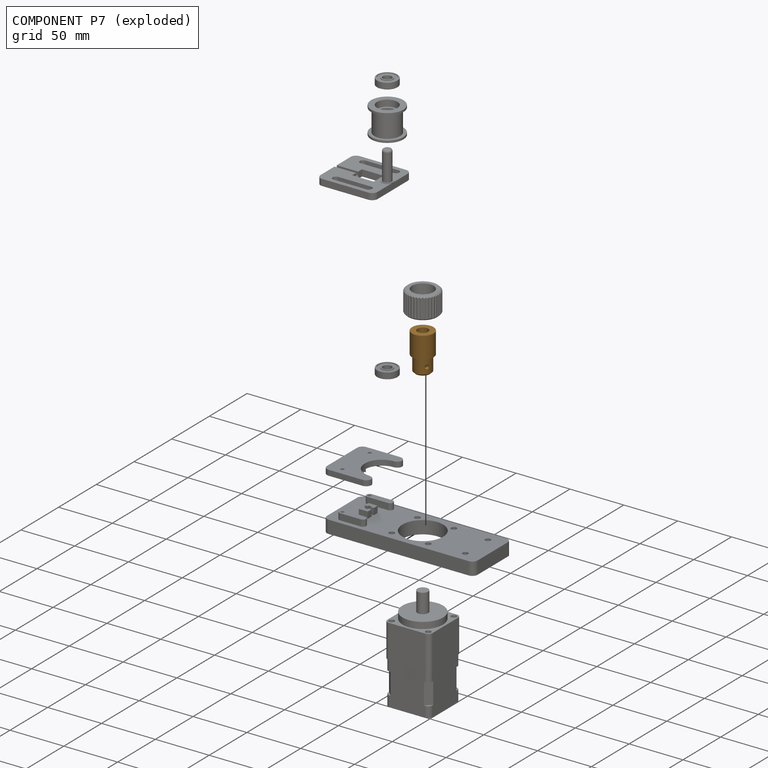
[diagram: component P7 — exploded]
COMPONENT P7 — geometry summary (no construction recipe available for this part):
  bounding box: 35.0 x 20.0 x 20.0 mm
  B-rep topology: 1 solid, 11 faces, 56 edges
  volume: 6451 mm^3 (46% of its bounding box)
Held by: PLANAR mate "Planar 7" to P2; CYLINDRICAL mate "Cylindrical 7" to P2; PARALLEL mate "Parallel 3" to P8; CYLINDRICAL mate "Cylindrical 6" to P8.
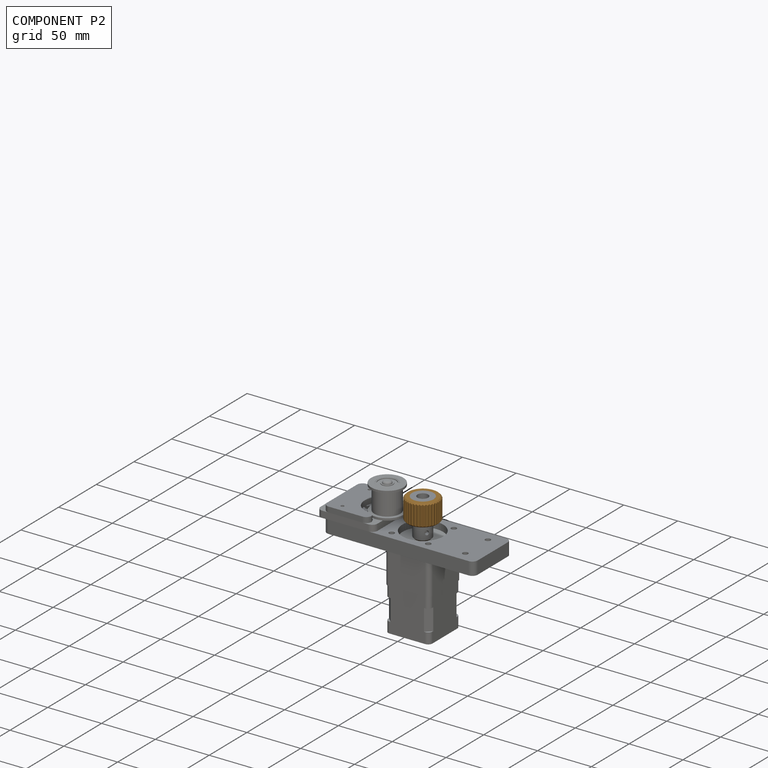
[diagram: component P2 — assembled]
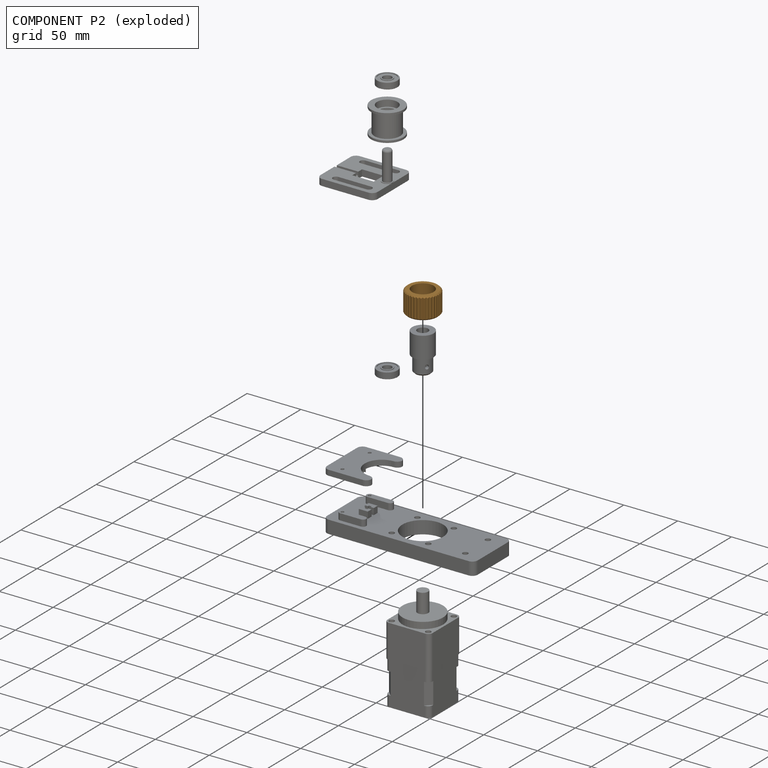
[diagram: component P2 — exploded]
COMPONENT P2 — geometry summary (no construction recipe available for this part):
  bounding box: 29.9 x 29.9 x 20.0 mm
  B-rep topology: 1 solid, 113 faces, 666 edges
  volume: 7070 mm^3 (40% of its bounding box)
  symmetry: revolution-symmetric about the x axis through its bounding-box center; 2-fold rotationally symmetric about the y axis; 2-fold rotationally symmetric about the z axis; mirror-symmetric across its x mid-plane, y mid-plane, z mid-plane
Held by: PLANAR mate "Planar 7" to P7; CYLINDRICAL mate "Cylindrical 7" to P7.
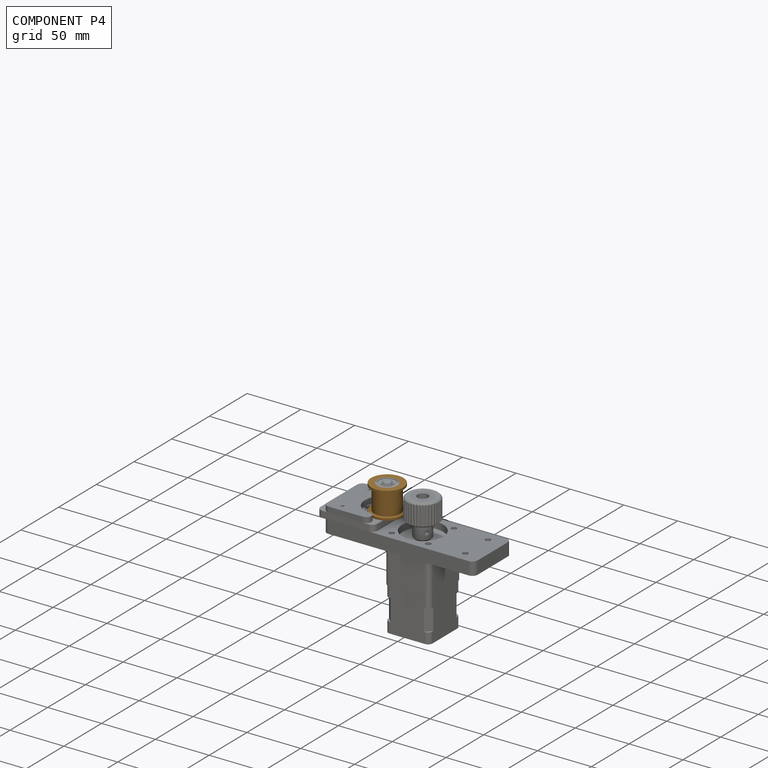
[diagram: component P4 — assembled]
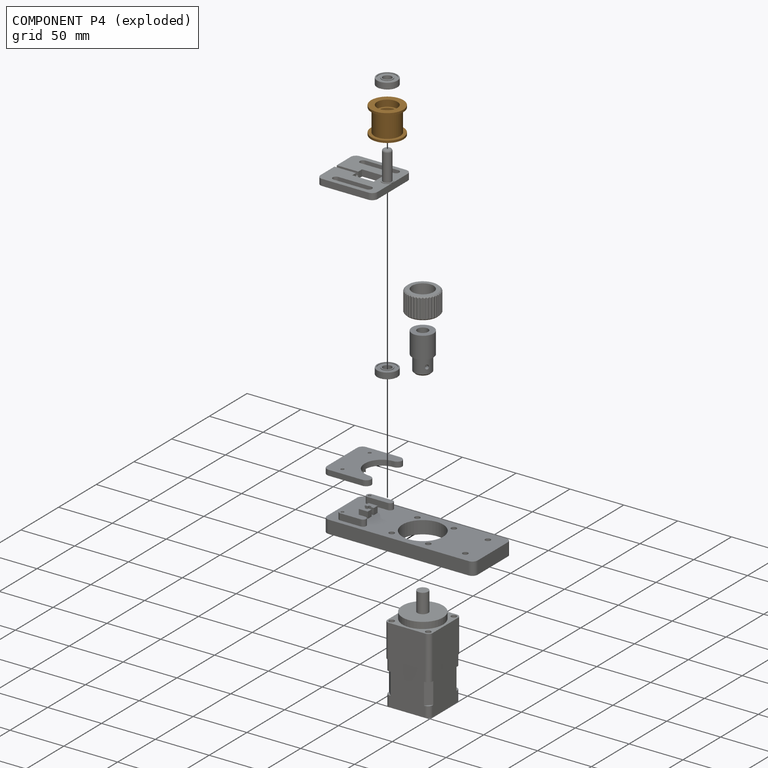
[diagram: component P4 — exploded]
COMPONENT P4 — geometry summary (no construction recipe available for this part):
  bounding box: 30.0 x 30.0 x 25.0 mm
  B-rep topology: 1 solid, 12 faces, 36 edges
  volume: 6628 mm^3 (29% of its bounding box)
  symmetry: revolution-symmetric about the x axis through its bounding-box center; 2-fold rotationally symmetric about the y axis; 2-fold rotationally symmetric about the z axis; mirror-symmetric across its x mid-plane, y mid-plane, z mid-plane
Held by: PLANAR mate "Planar 5" to P6; CYLINDRICAL mate "Cylindrical 3" to P6; CYLINDRICAL mate "Cylindrical 4" to P1; PLANAR mate "Planar 4" to P1.
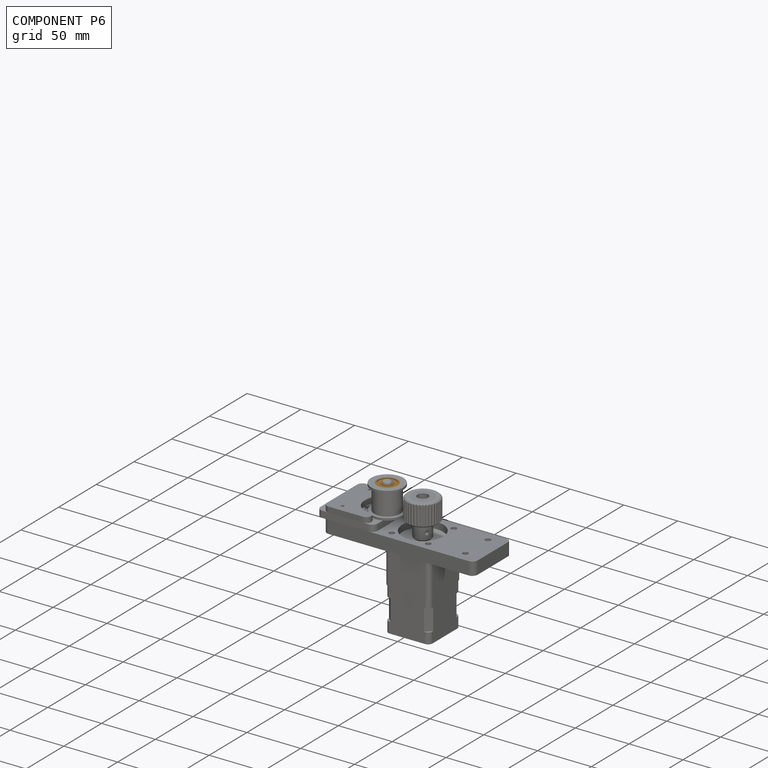
[diagram: component P6 — assembled]
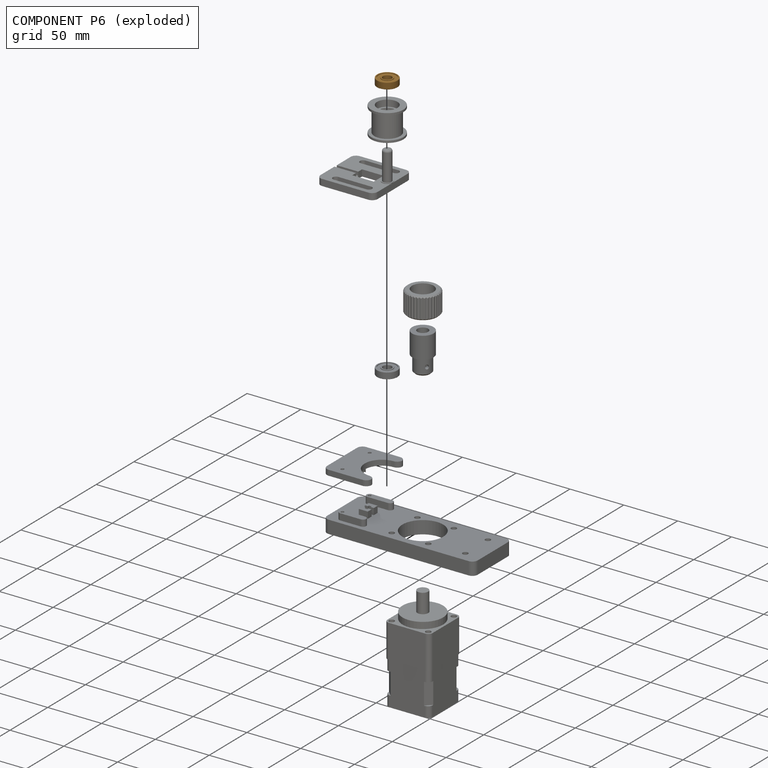
[diagram: component P6 — exploded]
COMPONENT P6 — geometry summary (no construction recipe available for this part):
  bounding box: 20.6 x 20.6 x 6.0 mm
  B-rep topology: 1 solid, 16 faces, 52 edges
  volume: 1232 mm^3 (49% of its bounding box)
  symmetry: revolution-symmetric about the x axis through its bounding-box center; 2-fold rotationally symmetric about the y axis; 2-fold rotationally symmetric about the z axis; mirror-symmetric across its x mid-plane, y mid-plane, z mid-plane
Held by: PLANAR mate "Planar 5" to P4; CYLINDRICAL mate "Cylindrical 3" to P4.
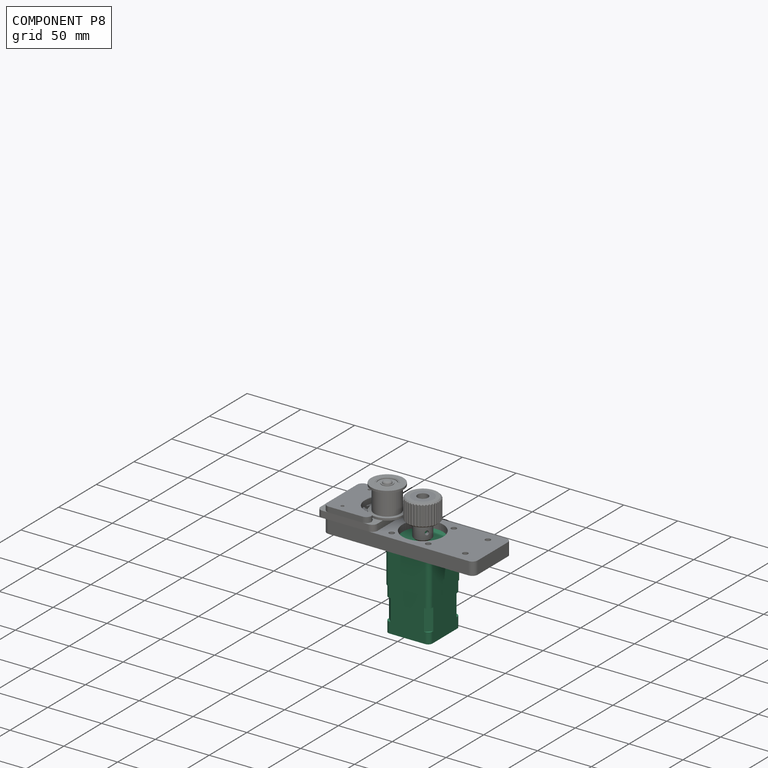
[diagram: component P8 — assembled]
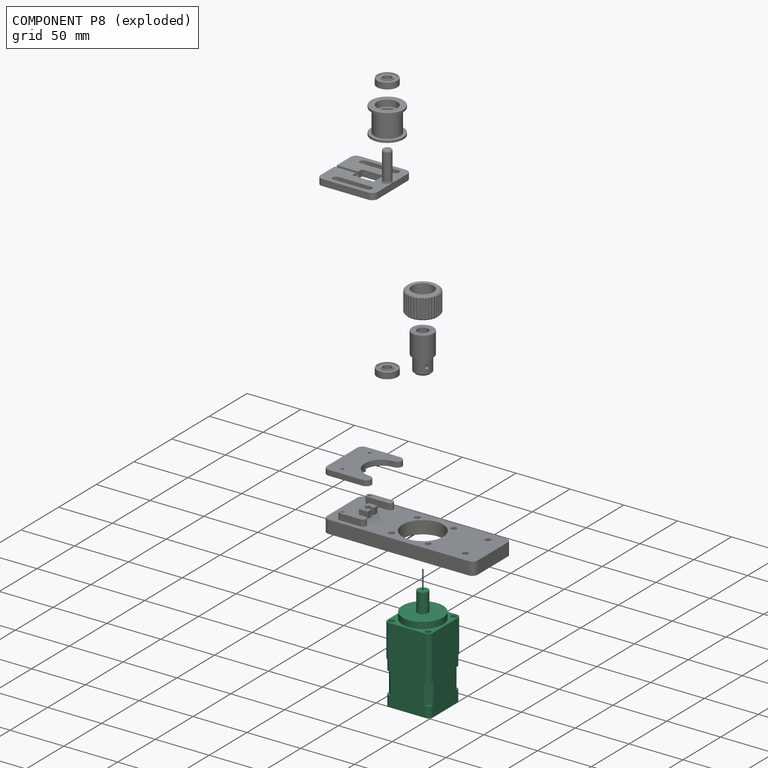
[diagram: component P8 — exploded]
COMPONENT P8 — recipe-attached (CADFS 00845113, mesh-verified: the recipe's output STEP matches this component's geometry to below the mesh-comparison resolution (tessellation chordal tolerance ~0.168 mm)).
Held by: CYLINDRICAL mate "Cylindrical 2" to P5; PLANAR mate "Planar 1" to P5; CYLINDRICAL mate "Cylindrical 1" to P5; PARALLEL mate "Parallel 3" to P7; CYLINDRICAL mate "Cylindrical 6" to P7.
Construction recipe (FeatureScript — the CAD program that rebuilds this solid; sketch coordinates are in the units given by the * unit suffixes, e.g. mm):

FeatureScript 1511;
import(path : "onshape/std/geometry.fs", version : "1511.0");
import(path : "onshape/std/common.fs", version : "1511.0");
const mm = millimeter;
const VERTEX = EntityType.VERTEX;
const EDGE = EntityType.EDGE;
const FACE = EntityType.FACE;
const BODY = EntityType.BODY;
function v(x, y){return vector(x, y);}
function OD(order){return orderDisambiguation(order);}
function OSD(set){return originalSetDisambiguation(set);}
function TD(topology){return topologyDisambiguation(topology);}
function TDD(query){return trueDependencyDisambiguation(query);}
function sQuery(a, b, c) {return sketchEntityQuery(a, b, c);}

annotation { "Feature Type Name" : "Feature", "Feature Type Description" : "" }
export const myFeature = defineFeature(function(context is Context, id is Id, definition is map)
    precondition{}
    {
        {
            var Q0;
            Q0=qCreatedBy(makeId("Top.planeOp"),FACE);
            var sketch = newSketch(context, id + "F0", { "sketchPlane" : qUnion([Q0])});
            skLineSegment(sketch, "E0.bottom", {"start": v(21, 21) * mm, "end": v(-21, 21) * mm});
            skLineSegment(sketch, "E0.top", {"start": v(21, -21) * mm, "end": v(-21, -21) * mm});
            skLineSegment(sketch, "E0.left", {"start": v(21, 21) * mm, "end": v(21, -21) * mm});
            skLineSegment(sketch, "E0.right", {"start": v(-21, 21) * mm, "end": v(-21, -21) * mm});
            skPoint(sketch, "E0.middle", {"position": v(0, 0) * mm});
            skCircle(sketch, "E1", {"center": v(0, 0) * mm, "radius": 24 * mm});
            skLineSegment(sketch, "E2", {"start": v(-21, 21) * mm, "end": v(21, -21) * mm});
            skLineSegment(sketch, "E3", {"start": v(-21, -21) * mm, "end": v(21, 21) * mm});
            skCircle(sketch, "E4", {"center": v(-16.97, 16.97) * mm, "radius": 2.5 * mm});
            skCircle(sketch, "E5", {"center": v(16.97, 16.97) * mm, "radius": 2.5 * mm});
            skCircle(sketch, "E6", {"center": v(16.97, -16.97) * mm, "radius": 2.5 * mm});
            skCircle(sketch, "E7", {"center": v(-16.97, -16.97) * mm, "radius": 2.5 * mm});
            skSolve(sketch);
        }
        {
            var Q0;
            {var subQ1=sQuery(id+"F0.wireOp",EDGE,"E0.bottom");var subQ3=sQuery(id+"F0.wireOp",EDGE,"E1");var subQ4=makeQuery(id+"F0.imprint","INTERSECT",VERTEX,{"disambiguationData":[OD(0.0)],"derivedFrom":[subQ1,subQ3]});Q0=makeQuery(id+"F0.imprint","IMPRINT",FACE,{"disambiguationData":[TD([[makeQuery(id+"F0.imprint","IMPRINT",EDGE,{"disambiguationData":[TD([[subQ4,1.0]])],"derivedFrom":subQ3}),-1.0]])]});}
            var Q1;
            {var subQ1=sQuery(id+"F0.wireOp",EDGE,"E0.bottom");var subQ3=sQuery(id+"F0.wireOp",EDGE,"E1");var subQ4=makeQuery(id+"F0.imprint","INTERSECT",VERTEX,{"disambiguationData":[OD(1.0)],"derivedFrom":[subQ1,subQ3]});Q1=makeQuery(id+"F0.imprint","IMPRINT",FACE,{"disambiguationData":[TD([[makeQuery(id+"F0.imprint","IMPRINT",EDGE,{"disambiguationData":[TD([[subQ4,-1.0]])],"derivedFrom":subQ3}),-1.0]])]});}
            var Q2;
            {var subQ1=sQuery(id+"F0.wireOp",EDGE,"E0.top");var subQ3=sQuery(id+"F0.wireOp",EDGE,"E1");var subQ4=makeQuery(id+"F0.imprint","INTERSECT",VERTEX,{"disambiguationData":[OD(0.0)],"derivedFrom":[subQ1,subQ3]});Q2=makeQuery(id+"F0.imprint","IMPRINT",FACE,{"disambiguationData":[TD([[makeQuery(id+"F0.imprint","IMPRINT",EDGE,{"disambiguationData":[TD([[subQ4,-1.0]])],"derivedFrom":subQ3}),-1.0]])]});}
            var Q3;
            {var subQ1=sQuery(id+"F0.wireOp",EDGE,"E0.top");var subQ3=sQuery(id+"F0.wireOp",EDGE,"E1");var subQ4=makeQuery(id+"F0.imprint","INTERSECT",VERTEX,{"disambiguationData":[OD(1.0)],"derivedFrom":[subQ1,subQ3]});Q3=makeQuery(id+"F0.imprint","IMPRINT",FACE,{"disambiguationData":[TD([[makeQuery(id+"F0.imprint","IMPRINT",EDGE,{"disambiguationData":[TD([[subQ4,1.0]])],"derivedFrom":subQ3}),-1.0]])]});}
            var Q4;
            {var subQ1=sQuery(id+"F0.wireOp",EDGE,"E0.left");var subQ3=sQuery(id+"F0.wireOp",EDGE,"E1");var subQ4=makeQuery(id+"F0.imprint","INTERSECT",VERTEX,{"disambiguationData":[OD(0.0)],"derivedFrom":[subQ1,subQ3]});Q4=makeQuery(id+"F0.imprint","IMPRINT",FACE,{"disambiguationData":[TD([[makeQuery(id+"F0.imprint","IMPRINT",EDGE,{"disambiguationData":[TD([[subQ4,-1.0]])],"derivedFrom":subQ3}),-1.0]])]});}
            var Q5;
            {var subQ1=sQuery(id+"F0.wireOp",EDGE,"E0.left");var subQ3=sQuery(id+"F0.wireOp",EDGE,"E1");var subQ4=makeQuery(id+"F0.imprint","INTERSECT",VERTEX,{"disambiguationData":[OD(1.0)],"derivedFrom":[subQ1,subQ3]});Q5=makeQuery(id+"F0.imprint","IMPRINT",FACE,{"disambiguationData":[TD([[makeQuery(id+"F0.imprint","IMPRINT",EDGE,{"disambiguationData":[TD([[subQ4,1.0]])],"derivedFrom":subQ3}),-1.0]])]});}
            var Q6;
            {var subQ1=sQuery(id+"F0.wireOp",EDGE,"E0.right");var subQ3=sQuery(id+"F0.wireOp",EDGE,"E1");var subQ4=makeQuery(id+"F0.imprint","INTERSECT",VERTEX,{"disambiguationData":[OD(0.0)],"derivedFrom":[subQ1,subQ3]});Q6=makeQuery(id+"F0.imprint","IMPRINT",FACE,{"disambiguationData":[TD([[makeQuery(id+"F0.imprint","IMPRINT",EDGE,{"disambiguationData":[TD([[subQ4,1.0]])],"derivedFrom":subQ3}),-1.0]])]});}
            var Q7;
            {var subQ1=sQuery(id+"F0.wireOp",EDGE,"E0.right");var subQ3=sQuery(id+"F0.wireOp",EDGE,"E1");var subQ4=makeQuery(id+"F0.imprint","INTERSECT",VERTEX,{"disambiguationData":[OD(1.0)],"derivedFrom":[subQ1,subQ3]});Q7=makeQuery(id+"F0.imprint","IMPRINT",FACE,{"disambiguationData":[TD([[makeQuery(id+"F0.imprint","IMPRINT",EDGE,{"disambiguationData":[TD([[subQ4,-1.0]])],"derivedFrom":subQ3}),-1.0]])]});}
            var Q8;
            {var subQ0=sQuery(id+"F0.wireOp",EDGE,"E1");var subQ1=sQuery(id+"F0.wireOp",EDGE,"E0.bottom");var subQ9=makeQuery(id+"F0.imprint","INTERSECT",VERTEX,{"disambiguationData":[OD(0.0)],"derivedFrom":[subQ1,subQ0]});Q8=makeQuery(id+"F0.imprint","IMPRINT",FACE,{"disambiguationData":[TD([[makeQuery(id+"F0.imprint","IMPRINT",EDGE,{"disambiguationData":[TD([[subQ9,-1.0]])],"derivedFrom":subQ1}),1.0]])]});}
            var Q9;
            {var subQ5=sQuery(id+"F0.wireOp",EDGE,"E1");var subQ6=sQuery(id+"F0.wireOp",EDGE,"E0.top");var subQ10=makeQuery(id+"F0.imprint","INTERSECT",VERTEX,{"disambiguationData":[OD(0.0)],"derivedFrom":[subQ6,subQ5]});Q9=makeQuery(id+"F0.imprint","IMPRINT",FACE,{"disambiguationData":[TD([[makeQuery(id+"F0.imprint","IMPRINT",EDGE,{"disambiguationData":[TD([[subQ10,-1.0]])],"derivedFrom":subQ6}),-1.0]])]});}
            var Q10;
            {var subQ5=sQuery(id+"F0.wireOp",EDGE,"E1");var subQ6=sQuery(id+"F0.wireOp",EDGE,"E0.left");var subQ9=makeQuery(id+"F0.imprint","INTERSECT",VERTEX,{"disambiguationData":[OD(0.0)],"derivedFrom":[subQ6,subQ5]});Q10=makeQuery(id+"F0.imprint","IMPRINT",FACE,{"disambiguationData":[TD([[makeQuery(id+"F0.imprint","IMPRINT",EDGE,{"disambiguationData":[TD([[subQ9,-1.0]])],"derivedFrom":subQ6}),-1.0]])]});}
            var Q11;
            {var subQ0=sQuery(id+"F0.wireOp",EDGE,"E1");var subQ1=sQuery(id+"F0.wireOp",EDGE,"E0.right");var subQ10=makeQuery(id+"F0.imprint","INTERSECT",VERTEX,{"disambiguationData":[OD(0.0)],"derivedFrom":[subQ1,subQ0]});Q11=makeQuery(id+"F0.imprint","IMPRINT",FACE,{"disambiguationData":[TD([[makeQuery(id+"F0.imprint","IMPRINT",EDGE,{"disambiguationData":[TD([[subQ10,-1.0]])],"derivedFrom":subQ1}),1.0]])]});}
            extrude(context, id + "F1", {"entities" : qUnion([Q0, Q1, Q2, Q3, Q4, Q5, Q6, Q7, Q8, Q9, Q10, Q11]), "depth" : 31 * mm, "offsetDistance" : 25 * mm});
        }
        {
            var Q0;
            Q0=makeQuery(id+"F1.opExtrude","CAP_FACE",FACE,{"disambiguationData":[OSD([sQuery(id+"F0.wireOp",EDGE,"E0.bottom"),sQuery(id+"F0.wireOp",EDGE,"E0.top"),sQuery(id+"F0.wireOp",EDGE,"E0.left"),sQuery(id+"F0.wireOp",EDGE,"E0.right"),sQuery(id+"F0.wireOp",EDGE,"E4"),sQuery(id+"F0.wireOp",EDGE,"E5"),sQuery(id+"F0.wireOp",EDGE,"E6"),sQuery(id+"F0.wireOp",EDGE,"E7")])],"isStart":false});
            var sketch = newSketch(context, id + "F2", { "sketchPlane" : qUnion([Q0])});
            skCircle(sketch, "E8", {"center": v(0, 0) * mm, "radius": 18.8 * mm});
            skSolve(sketch);
        }
        {
            var Q0;
            Q0=makeQuery(id+"F2.imprint","IMPRINT",FACE,{"disambiguationData":[TD([[makeQuery(id+"F2.imprint","IMPRINT",EDGE,{"derivedFrom":sQuery(id+"F2.wireOp",EDGE,"E8")}),1.0]])]});
            extrude(context, id + "F3", {"entities" : qUnion([Q0]), "operationType" : NewBodyOperationType.ADD, "depth" : 6 * mm, "offsetDistance" : 25 * mm});
        }
        {
            var Q0;
            Q0=makeQuery(id+"F3.opExtrude","CAP_FACE",FACE,{"disambiguationData":[OSD([sQuery(id+"F2.wireOp",EDGE,"E8")])],"isStart":false});
            var sketch = newSketch(context, id + "F4", { "sketchPlane" : qUnion([Q0])});
            skCircle(sketch, "E9", {"center": v(0, 0) * mm, "radius": 5 * mm});
            skSolve(sketch);
        }
        {
            var Q0;
            Q0=makeQuery(id+"F4.imprint","IMPRINT",FACE,{"disambiguationData":[TD([[makeQuery(id+"F4.imprint","IMPRINT",EDGE,{"derivedFrom":sQuery(id+"F4.wireOp",EDGE,"E9")}),1.0]])]});
            extrude(context, id + "F5", {"entities" : qUnion([Q0]), "operationType" : NewBodyOperationType.ADD, "depth" : 18 * mm, "offsetDistance" : 25 * mm});
        }
        {
            var Q0;
            Q0=makeQuery(id+"F1.opExtrude","SWEPT_EDGE",EDGE,{"disambiguationData":[OSD([sQuery(id+"F0.wireOp",EDGE,"E0.top"),sQuery(id+"F0.wireOp",EDGE,"E0.right"),sQuery(id+"F0.wireOp",EDGE,"E3")])]});
            var Q1;
            Q1=makeQuery(id+"F1.opExtrude","SWEPT_EDGE",EDGE,{"disambiguationData":[OSD([sQuery(id+"F0.wireOp",EDGE,"E0.bottom"),sQuery(id+"F0.wireOp",EDGE,"E0.right"),sQuery(id+"F0.wireOp",EDGE,"E2")])]});
            var Q2;
            Q2=makeQuery(id+"F1.opExtrude","SWEPT_EDGE",EDGE,{"disambiguationData":[OSD([sQuery(id+"F0.wireOp",EDGE,"E0.bottom"),sQuery(id+"F0.wireOp",EDGE,"E0.left"),sQuery(id+"F0.wireOp",EDGE,"E3")])]});
            var Q3;
            Q3=makeQuery(id+"F1.opExtrude","SWEPT_EDGE",EDGE,{"disambiguationData":[OSD([sQuery(id+"F0.wireOp",EDGE,"E0.top"),sQuery(id+"F0.wireOp",EDGE,"E0.left"),sQuery(id+"F0.wireOp",EDGE,"E2")])]});
            fillet(context, id + "F6", {"entities" : qUnion([Q0, Q1, Q2, Q3]), "radius" : 4 * mm, "tangentPropagation" : true, "allowEdgeOverflow" : false});
        }
        {
            var Q0;
            Q0=makeQuery(id+"F1.opExtrude","CAP_FACE",FACE,{"disambiguationData":[OSD([sQuery(id+"F0.wireOp",EDGE,"E0.bottom"),sQuery(id+"F0.wireOp",EDGE,"E0.top"),sQuery(id+"F0.wireOp",EDGE,"E0.left"),sQuery(id+"F0.wireOp",EDGE,"E0.right"),sQuery(id+"F0.wireOp",EDGE,"E4"),sQuery(id+"F0.wireOp",EDGE,"E5"),sQuery(id+"F0.wireOp",EDGE,"E6"),sQuery(id+"F0.wireOp",EDGE,"E7")])],"isStart":true});
            var sketch = newSketch(context, id + "F7", { "sketchPlane" : qUnion([Q0])});
            skSolve(sketch);
        }
        {
            var Q0;
            {var subQ5=sQuery(id+"F0.wireOp",EDGE,"E4");Q0=makeQuery(id+"F7.imprint","IMPRINT",FACE,{"disambiguationData":[TD([[makeQuery(id+"F7.imprint","IMPRINT",EDGE,{"derivedFrom":makeQuery(id+"F1.opExtrude","CAP_EDGE",EDGE,{"disambiguationData":[OSD([subQ5])],"isStart":true})}),1.0]])]});}
            var sketch = newSketch(context, id + "F8", { "sketchPlane" : qUnion([Q0])});
            skLineSegment(sketch, "E10.bottom", {"start": v(20.5, 20.5) * mm, "end": v(-20.5, 20.5) * mm});
            skLineSegment(sketch, "E10.top", {"start": v(20.5, -20.5) * mm, "end": v(-20.5, -20.5) * mm});
            skLineSegment(sketch, "E10.left", {"start": v(20.5, 20.5) * mm, "end": v(20.5, -20.5) * mm});
            skLineSegment(sketch, "E10.right", {"start": v(-20.5, 20.5) * mm, "end": v(-20.5, -20.5) * mm});
            skPoint(sketch, "E10.middle", {"position": v(0, 0) * mm});
            skSolve(sketch);
        }
        {
            var Q0;
            Q0 = qSketchRegion(id + "F8", true);
            extrude(context, id + "F9", {"entities" : qUnion([Q0]), "operationType" : NewBodyOperationType.ADD, "depth" : 10 * mm, "offsetDistance" : 25 * mm});
        }
        {
            var Q0;
            Q0=makeQuery(id+"F9.opExtrude","SWEPT_EDGE",EDGE,{"disambiguationData":[OSD([sQuery(id+"F8.wireOp",EDGE,"E10.bottom"),sQuery(id+"F8.wireOp",EDGE,"E10.left")])]});
            var Q1;
            Q1=makeQuery(id+"F9.opExtrude","SWEPT_EDGE",EDGE,{"disambiguationData":[OSD([sQuery(id+"F8.wireOp",EDGE,"E10.top"),sQuery(id+"F8.wireOp",EDGE,"E10.left")])]});
            var Q2;
            Q2=makeQuery(id+"F9.opExtrude","SWEPT_EDGE",EDGE,{"disambiguationData":[OSD([sQuery(id+"F8.wireOp",EDGE,"E10.top"),sQuery(id+"F8.wireOp",EDGE,"E10.right")])]});
            var Q3;
            Q3=makeQuery(id+"F9.opExtrude","SWEPT_EDGE",EDGE,{"disambiguationData":[OSD([sQuery(id+"F8.wireOp",EDGE,"E10.bottom"),sQuery(id+"F8.wireOp",EDGE,"E10.right")])]});
            fillet(context, id + "F10", {"entities" : qUnion([Q0, Q1, Q2, Q3]), "radius" : 4 * mm, "tangentPropagation" : true, "allowEdgeOverflow" : false});
        }
        {
            var Q0;
            Q0=makeQuery(id+"F9.opExtrude","CAP_FACE",FACE,{"disambiguationData":[OSD([sQuery(id+"F8.wireOp",EDGE,"E10.bottom"),sQuery(id+"F8.wireOp",EDGE,"E10.top"),sQuery(id+"F8.wireOp",EDGE,"E10.left"),sQuery(id+"F8.wireOp",EDGE,"E10.right")])],"isStart":false});
            var sketch = newSketch(context, id + "F11", { "sketchPlane" : qUnion([Q0])});
            skLineSegment(sketch, "E11.bottom", {"start": v(20.5, -20.5) * mm, "end": v(-20.5, -20.5) * mm});
            skLineSegment(sketch, "E11.top", {"start": v(20.5, 20.5) * mm, "end": v(-20.5, 20.5) * mm});
            skLineSegment(sketch, "E11.left", {"start": v(20.5, -20.5) * mm, "end": v(20.5, 20.5) * mm});
            skLineSegment(sketch, "E11.right", {"start": v(-20.5, -20.5) * mm, "end": v(-20.5, 20.5) * mm});
            skPoint(sketch, "E11.middle", {"position": v(0, 0) * mm});
            skLineSegment(sketch, "E12.bottom", {"start": v(-15.5, 15.5) * mm, "end": v(-25.5, 15.5) * mm});
            skLineSegment(sketch, "E12.top", {"start": v(-15.5, 25.5) * mm, "end": v(-25.5, 25.5) * mm});
            skLineSegment(sketch, "E12.left", {"start": v(-15.5, 15.5) * mm, "end": v(-15.5, 25.5) * mm});
            skLineSegment(sketch, "E12.right", {"start": v(-25.5, 15.5) * mm, "end": v(-25.5, 25.5) * mm});
            skPoint(sketch, "E12.middle", {"position": v(-20.5, 20.5) * mm});
            skLineSegment(sketch, "E13.bottom", {"start": v(25.5, 15.5) * mm, "end": v(15.5, 15.5) * mm});
            skLineSegment(sketch, "E13.top", {"start": v(25.5, 25.5) * mm, "end": v(15.5, 25.5) * mm});
            skLineSegment(sketch, "E13.left", {"start": v(25.5, 15.5) * mm, "end": v(25.5, 25.5) * mm});
            skLineSegment(sketch, "E13.right", {"start": v(15.5, 15.5) * mm, "end": v(15.5, 25.5) * mm});
            skPoint(sketch, "E13.middle", {"position": v(20.5, 20.5) * mm});
            skLineSegment(sketch, "E14.bottom", {"start": v(25.5, -25.5) * mm, "end": v(15.5, -25.5) * mm});
            skLineSegment(sketch, "E14.top", {"start": v(25.5, -15.5) * mm, "end": v(15.5, -15.5) * mm});
            skLineSegment(sketch, "E14.left", {"start": v(25.5, -25.5) * mm, "end": v(25.5, -15.5) * mm});
            skLineSegment(sketch, "E14.right", {"start": v(15.5, -25.5) * mm, "end": v(15.5, -15.5) * mm});
            skPoint(sketch, "E14.middle", {"position": v(20.5, -20.5) * mm});
            skLineSegment(sketch, "E15.bottom", {"start": v(-25.5, -25.5) * mm, "end": v(-15.5, -25.5) * mm});
            skLineSegment(sketch, "E15.top", {"start": v(-25.5, -15.5) * mm, "end": v(-15.5, -15.5) * mm});
            skLineSegment(sketch, "E15.left", {"start": v(-25.5, -25.5) * mm, "end": v(-25.5, -15.5) * mm});
            skLineSegment(sketch, "E15.right", {"start": v(-15.5, -25.5) * mm, "end": v(-15.5, -15.5) * mm});
            skPoint(sketch, "E15.middle", {"position": v(-20.5, -20.5) * mm});
            skLineSegment(sketch, "E16", {"start": v(-15.5, 20.5) * mm, "end": v(-20.5, 15.5) * mm});
            skLineSegment(sketch, "E17", {"start": v(-20.5, -15.5) * mm, "end": v(-15.5, -20.5) * mm});
            skLineSegment(sketch, "E18", {"start": v(15.5, -20.5) * mm, "end": v(20.5, -15.5) * mm});
            skLineSegment(sketch, "E19", {"start": v(20.5, 15.5) * mm, "end": v(15.5, 20.5) * mm});
            skSolve(sketch);
        }
        {
            var Q0;
            {var subQ3=sQuery(id+"F11.wireOp",EDGE,"E16");Q0=makeQuery(id+"F11.imprint","IMPRINT",FACE,{"disambiguationData":[TD([[makeQuery(id+"F11.imprint","IMPRINT",EDGE,{"derivedFrom":subQ3}),1.0]])]});}
            var Q1;
            {var subQ3=sQuery(id+"F11.wireOp",EDGE,"E19");Q1=makeQuery(id+"F11.imprint","IMPRINT",FACE,{"disambiguationData":[TD([[makeQuery(id+"F11.imprint","IMPRINT",EDGE,{"derivedFrom":subQ3}),1.0]])]});}
            var Q2;
            {var subQ3=sQuery(id+"F11.wireOp",EDGE,"E18");Q2=makeQuery(id+"F11.imprint","IMPRINT",FACE,{"disambiguationData":[TD([[makeQuery(id+"F11.imprint","IMPRINT",EDGE,{"derivedFrom":subQ3}),1.0]])]});}
            var Q3;
            {var subQ3=sQuery(id+"F11.wireOp",EDGE,"E17");Q3=makeQuery(id+"F11.imprint","IMPRINT",FACE,{"disambiguationData":[TD([[makeQuery(id+"F11.imprint","IMPRINT",EDGE,{"derivedFrom":subQ3}),1.0]])]});}
            var Q4;
            {var subQ13=sQuery(id+"F11.wireOp",EDGE,"E12.left");var subQ18=sQuery(id+"F11.wireOp",EDGE,"E12.bottom");var subQ19=makeQuery(id+"F11.imprint","INTERSECT",VERTEX,{"derivedFrom":[subQ18,subQ13]});Q4=makeQuery(id+"F11.imprint","IMPRINT",FACE,{"disambiguationData":[TD([[makeQuery(id+"F11.imprint","IMPRINT",EDGE,{"disambiguationData":[TD([[subQ19,-1.0]])],"derivedFrom":subQ18}),1.0]])]});}
            extrude(context, id + "F12", {"entities" : qUnion([Q0, Q1, Q2, Q3, Q4]), "operationType" : NewBodyOperationType.ADD, "depth" : 20 * mm, "offsetDistance" : 25 * mm});
        }
        {
            var Q0;
            Q0=makeQuery(id+"F12.opExtrude","CAP_FACE",FACE,{"disambiguationData":[OSD([sQuery(id+"F11.wireOp",EDGE,"E11.bottom"),sQuery(id+"F11.wireOp",EDGE,"E11.top"),sQuery(id+"F11.wireOp",EDGE,"E11.left"),sQuery(id+"F11.wireOp",EDGE,"E11.right"),sQuery(id+"F11.wireOp",EDGE,"E16"),sQuery(id+"F11.wireOp",EDGE,"E17"),sQuery(id+"F11.wireOp",EDGE,"E18"),sQuery(id+"F11.wireOp",EDGE,"E19")])],"isStart":false});
            var sketch = newSketch(context, id + "F13", { "sketchPlane" : qUnion([Q0])});
            skLineSegment(sketch, "E20.bottom", {"start": v(20.5, -20.5) * mm, "end": v(-20.5, -20.5) * mm});
            skLineSegment(sketch, "E20.top", {"start": v(20.5, 20.5) * mm, "end": v(-20.5, 20.5) * mm});
            skLineSegment(sketch, "E20.left", {"start": v(20.5, -20.5) * mm, "end": v(20.5, 20.5) * mm});
            skLineSegment(sketch, "E20.right", {"start": v(-20.5, -20.5) * mm, "end": v(-20.5, 20.5) * mm});
            skPoint(sketch, "E20.middle", {"position": v(0, 0) * mm});
            skSolve(sketch);
        }
        {
            var Q0;
            Q0 = qSketchRegion(id + "F13", true);
            extrude(context, id + "F14", {"entities" : qUnion([Q0]), "operationType" : NewBodyOperationType.ADD, "depth" : 10 * mm, "offsetDistance" : 25 * mm});
        }
        {
            var Q0;
            Q0=makeQuery(id+"F14.opExtrude","SWEPT_EDGE",EDGE,{"disambiguationData":[OSD([sQuery(id+"F13.wireOp",EDGE,"E20.top"),sQuery(id+"F13.wireOp",EDGE,"E20.left")])]});
            var Q1;
            Q1=makeQuery(id+"F14.opExtrude","SWEPT_EDGE",EDGE,{"disambiguationData":[OSD([sQuery(id+"F13.wireOp",EDGE,"E20.top"),sQuery(id+"F13.wireOp",EDGE,"E20.right")])]});
            var Q2;
            Q2=makeQuery(id+"F14.opExtrude","SWEPT_EDGE",EDGE,{"disambiguationData":[OSD([sQuery(id+"F13.wireOp",EDGE,"E20.bottom"),sQuery(id+"F13.wireOp",EDGE,"E20.left")])]});
            var Q3;
            Q3=makeQuery(id+"F14.opExtrude","SWEPT_EDGE",EDGE,{"disambiguationData":[OSD([sQuery(id+"F13.wireOp",EDGE,"E20.bottom"),sQuery(id+"F13.wireOp",EDGE,"E20.right")])]});
            fillet(context, id + "F15", {"entities" : qUnion([Q0, Q1, Q2, Q3]), "radius" : 4 * mm, "tangentPropagation" : true, "allowEdgeOverflow" : false});
        }
    });
PROVENANCE & LICENSES
Assembly (occurrences, transforms, mates, per-part STEP geometry): AutoMate dataset, Zenodo record 7776208, CC0.
Construction recipes: CADFS (HuggingFace VladPyatov/CADFS, CC-BY-4.0, layered over the ABC dataset), FeatureScript reconstruction programs keyed by ABC model id.
Join: ABC meta listings map ABC model id -> Onshape documentId; within a shared document, parts are matched by geometric signature (bounding-box dims + volume at 0.1% relative tolerance, exact B-rep face/solid counts).
Verification: 4 of this assembly's 9 components carry a recipe attachment, and every attachment is mesh-verified: the CADFS STEP and the AutoMate member STEP were compared as meshes in their shared local frame (symmetric sampled-point-to-mesh distance); worst across the 4 attachments: below the mesh-comparison resolution (tessellation chordal tolerance ~0.225 mm) on a 150 mm part.
Renders: orthographic iso camera (az 35 / el 25); the floor grid conveys scale (grid pitch printed in each image; no ruler). In the exploded view each component is displaced by its stored offset vector: the offsets alone carry the explosion direction (mate normal/axis signs are not orientation cues and do not encode it), and separation distances are assigned per mate-chain, not proportionally to assembly-order depth.
